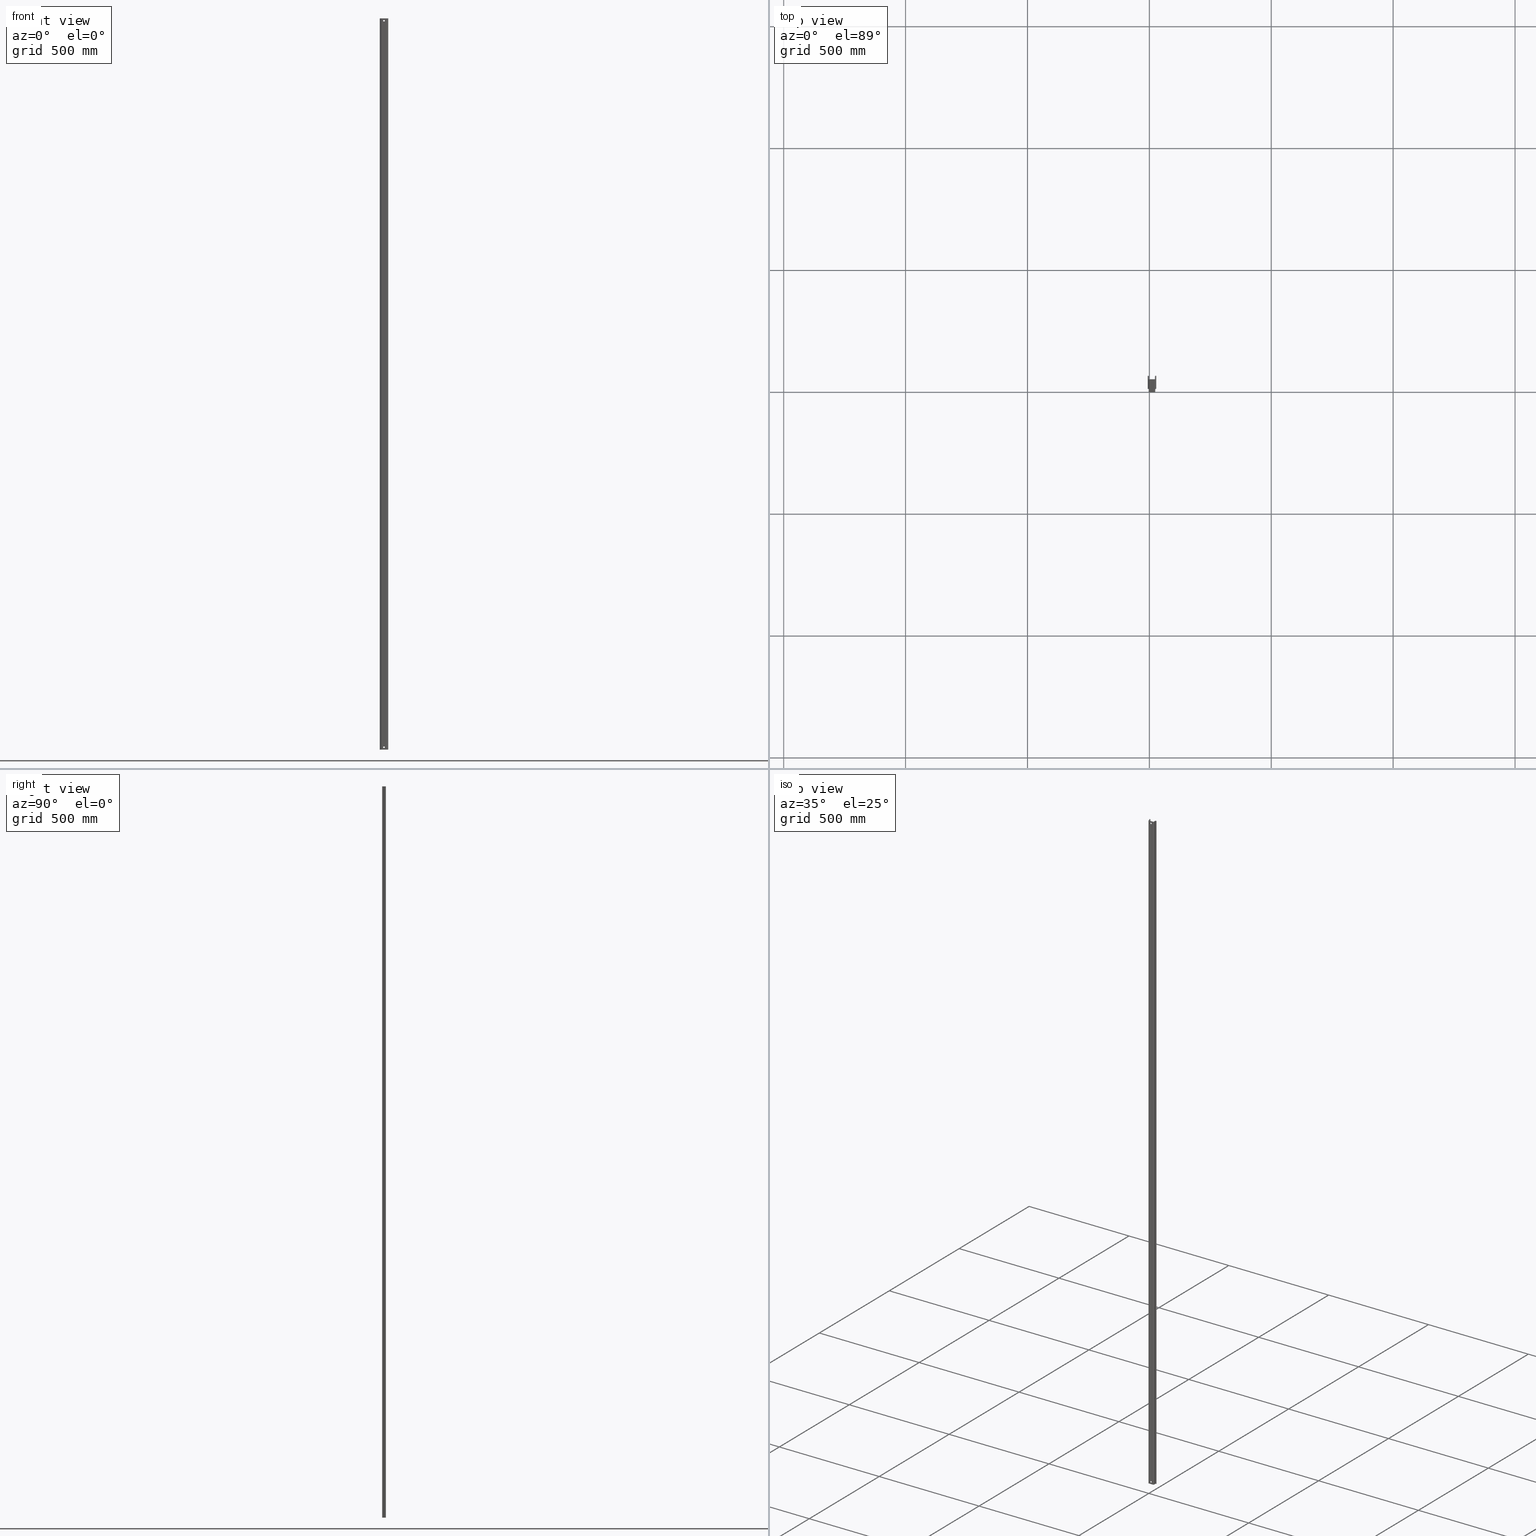
[diagram: canonical four-view strip — front | top / right | iso, engineering-drawing reading convention]
A machine part, canonical four-view strip (front | top / right | iso — engineering-drawing reading convention). The complete STEP part file that produces these views, byte-faithful:
ISO-10303-21;
HEADER;
FILE_DESCRIPTION (( 'STEP AP203' ),
    '1' );
FILE_NAME ('35x15 Galvaniz Kapl� D�z Montaj Raylar� - 3 m.STEP',
    '2019-01-04T05:44:15',
    ( '' ),
    ( '' ),
    'SwSTEP 2.0',
    'SolidWorks 2011',
    '' );
FILE_SCHEMA (( 'CONFIG_CONTROL_DESIGN' ));
ENDSEC;

DATA;
#1 = CARTESIAN_POINT ( 'NONE',  ( 10.80000000000001500, 1.500000000000001300, 6.750000000000008000 ) ) ;
#2 = CARTESIAN_POINT ( 'NONE',  ( -4.833974596215169200, 13.49999999999993600, 3000.000000000000000 ) ) ;
#3 = CARTESIAN_POINT ( 'NONE',  ( -3.899999999999969300, 14.99999999999993100, 3000.000000000000000 ) ) ;
#4 = ORIENTED_EDGE ( 'NONE', *, *, #906, .T. ) ;
#5 = CARTESIAN_POINT ( 'NONE',  ( 0.0000000000000000000, 0.0000000000000000000, 3000.000000000000000 ) ) ;
#6 = ORIENTED_EDGE ( 'NONE', *, *, #927, .F. ) ;
#7 = CARTESIAN_POINT ( 'NONE',  ( 10.80000000000001500, 0.0000000000000000000, 13.25000000000001100 ) ) ;
#8 = CARTESIAN_POINT ( 'NONE',  ( -6.699999999999986900, 13.99999999999993600, 3000.000000000000000 ) ) ;
#9 = CARTESIAN_POINT ( 'NONE',  ( -3.899999999999969300, 13.49999999999993600, 3000.000000000000000 ) ) ;
#10 = CARTESIAN_POINT ( 'NONE',  ( 22.80000000000003300, 12.30000000000021400, 3000.000000000000000 ) ) ;
#11 = CARTESIAN_POINT ( 'NONE',  ( 21.60000000000014700, 1.500000000000001300, 0.0000000000000000000 ) ) ;
#12 = CARTESIAN_POINT ( 'NONE',  ( 26.43397459621518300, 13.50000000000004600, 0.0000000000000000000 ) ) ;
#13 = ORIENTED_EDGE ( 'NONE', *, *, #976, .T. ) ;
#14 = CARTESIAN_POINT ( 'NONE',  ( 25.50000000000000400, 15.00000000000005500, 0.0000000000000000000 ) ) ;
#15 = CARTESIAN_POINT ( 'NONE',  ( 0.0000000000000000000, 1.500000000000001300, 0.0000000000000000000 ) ) ;
#16 = ORIENTED_EDGE ( 'NONE', *, *, #922, .F. ) ;
#17 = CARTESIAN_POINT ( 'NONE',  ( -3.899999999999969300, 14.99999999999993100, 0.0000000000000000000 ) ) ;
#18 = CARTESIAN_POINT ( 'NONE',  ( 28.30000000000002200, 15.00000000000005500, 3000.000000000000000 ) ) ;
#19 = CARTESIAN_POINT ( 'NONE',  ( 10.80000000000001500, 0.0000000000000000000, 2993.250000000000000 ) ) ;
#20 = CARTESIAN_POINT ( 'NONE',  ( -6.699999999999986900, 13.99999999999993600, 0.0000000000000000000 ) ) ;
#21 = CARTESIAN_POINT ( 'NONE',  ( -1.199999999999961500, 2.699999999999980200, 3000.000000000000000 ) ) ;
#22 = CARTESIAN_POINT ( 'NONE',  ( 10.80000000000001500, 1.500000000000001300, 2986.750000000000500 ) ) ;
#23 = CARTESIAN_POINT ( 'NONE',  ( 25.50000000000000400, 13.50000000000004600, 3000.000000000000000 ) ) ;
#24 = CARTESIAN_POINT ( 'NONE',  ( 10.80000000000001500, 1.500000000000001300, 13.25000000000001100 ) ) ;
#25 = ORIENTED_EDGE ( 'NONE', *, *, #940, .T. ) ;
#26 = ORIENTED_EDGE ( 'NONE', *, *, #952, .F. ) ;
#27 = CARTESIAN_POINT ( 'NONE',  ( 21.60000000000014700, 0.0000000000000000000, 0.0000000000000000000 ) ) ;
#28 = ORIENTED_EDGE ( 'NONE', *, *, #946, .F. ) ;
#29 = ORIENTED_EDGE ( 'NONE', *, *, #900, .T. ) ;
#30 = ORIENTED_EDGE ( 'NONE', *, *, #928, .T. ) ;
#31 = ORIENTED_EDGE ( 'NONE', *, *, #943, .T. ) ;
#32 = CARTESIAN_POINT ( 'NONE',  ( 0.0000000000000000000, 0.0000000000000000000, 0.0000000000000000000 ) ) ;
#33 = ORIENTED_EDGE ( 'NONE', *, *, #972, .F. ) ;
#34 = CARTESIAN_POINT ( 'NONE',  ( 22.80000000000003300, 2.700000000000056600, 3000.000000000000000 ) ) ;
#35 = CARTESIAN_POINT ( 'NONE',  ( 25.50000000000000400, 15.00000000000005500, 3000.000000000000000 ) ) ;
#36 = ORIENTED_EDGE ( 'NONE', *, *, #944, .T. ) ;
#37 = CARTESIAN_POINT ( 'NONE',  ( -4.833974596215169200, 13.49999999999993600, 0.0000000000000000000 ) ) ;
#38 = CARTESIAN_POINT ( 'NONE',  ( 21.60000000000014700, 1.500000000000001300, 3000.000000000000000 ) ) ;
#39 = CARTESIAN_POINT ( 'NONE',  ( 26.43397459621518300, 13.50000000000004600, 3000.000000000000000 ) ) ;
#40 = CARTESIAN_POINT ( 'NONE',  ( 0.0000000000000000000, 1.500000000000001300, 3000.000000000000000 ) ) ;
#41 = ORIENTED_EDGE ( 'NONE', *, *, #917, .T. ) ;
#42 = CARTESIAN_POINT ( 'NONE',  ( -1.199999999999961500, 12.30000000000013000, 3000.000000000000000 ) ) ;
#43 = CARTESIAN_POINT ( 'NONE',  ( 28.30000000000002200, 15.00000000000005500, 0.0000000000000000000 ) ) ;
#44 = CARTESIAN_POINT ( 'NONE',  ( 28.30000000000002200, 14.00000000000005300, 3000.000000000000000 ) ) ;
#45 = CARTESIAN_POINT ( 'NONE',  ( 24.30000000000003300, 2.700000000000056600, 3000.000000000000000 ) ) ;
#46 = CARTESIAN_POINT ( 'NONE',  ( 21.60000000000014700, 0.0000000000000000000, 3000.000000000000000 ) ) ;
#47 = CARTESIAN_POINT ( 'NONE',  ( -1.040834085586084300E-014, 2.699999999999980200, 0.0000000000000000000 ) ) ;
#48 = CYLINDRICAL_SURFACE ( 'NONE', #712, 2.699999999999983700 ) ;
#49 = FACE_OUTER_BOUND ( 'NONE', #211, .T. ) ;
#50 = DIRECTION ( 'NONE',  ( -0.0000000000000000000, 0.0000000000000000000, -1.000000000000000000 ) ) ;
#51 = CARTESIAN_POINT ( 'NONE',  ( -1.199999999999961500, 12.30000000000013000, 0.0000000000000000000 ) ) ;
#52 = CARTESIAN_POINT ( 'NONE',  ( -2.699999999999962900, 12.30000000000013000, 3000.000000000000000 ) ) ;
#53 = CARTESIAN_POINT ( 'NONE',  ( 24.30000000000003300, 2.700000000000056600, 0.0000000000000000000 ) ) ;
#54 = CARTESIAN_POINT ( 'NONE',  ( 25.50000000000000400, 12.30000000000006100, 3000.000000000000000 ) ) ;
#55 = CARTESIAN_POINT ( 'NONE',  ( -6.699999999999986900, -22.46146667334581400, 3000.000000000000000 ) ) ;
#56 = CYLINDRICAL_SURFACE ( 'NONE', #723, 1.199999999999975300 ) ;
#57 = DIRECTION ( 'NONE',  ( -0.0000000000000000000, -0.0000000000000000000, -1.000000000000000000 ) ) ;
#58 = CARTESIAN_POINT ( 'NONE',  ( -3.899999999999969300, 13.49999999999993600, 0.0000000000000000000 ) ) ;
#59 = CARTESIAN_POINT ( 'NONE',  ( -2.699999999999962900, 12.30000000000013000, 0.0000000000000000000 ) ) ;
#60 = PLANE ( 'NONE',  #729 ) ;
#61 = CARTESIAN_POINT ( 'NONE',  ( -2.699999999999962900, -22.46146667334581400, 3000.000000000000000 ) ) ;
#62 = DIRECTION ( 'NONE',  ( 1.000000000000000000, 0.0000000000000000000, 0.0000000000000000000 ) ) ;
#63 = FACE_OUTER_BOUND ( 'NONE', #198, .T. ) ;
#64 = CARTESIAN_POINT ( 'NONE',  ( 24.30000000000003300, 12.30000000000022800, 0.0000000000000000000 ) ) ;
#65 = CARTESIAN_POINT ( 'NONE',  ( 25.50000000000000400, 12.30000000000006100, 3000.000000000000000 ) ) ;
#66 = DIRECTION ( 'NONE',  ( -0.0000000000000000000, -0.0000000000000000000, -1.000000000000000000 ) ) ;
#67 = DIRECTION ( 'NONE',  ( -0.0000000000000000000, 0.0000000000000000000, 1.000000000000000000 ) ) ;
#68 = DIRECTION ( 'NONE',  ( 0.0000000000000000000, 1.000000000000000000, 0.0000000000000000000 ) ) ;
#69 = CARTESIAN_POINT ( 'NONE',  ( 22.80000000000003300, 2.700000000000056600, 0.0000000000000000000 ) ) ;
#70 = DIRECTION ( 'NONE',  ( 1.000000000000000000, 0.0000000000000000000, -0.0000000000000000000 ) ) ;
#71 = DIRECTION ( 'NONE',  ( -1.000000000000000000, 0.0000000000000000000, 0.0000000000000000000 ) ) ;
#72 = FACE_OUTER_BOUND ( 'NONE', #209, .T. ) ;
#73 = DIRECTION ( 'NONE',  ( -0.0000000000000000000, -0.0000000000000000000, -1.000000000000000000 ) ) ;
#74 = DIRECTION ( 'NONE',  ( -1.000000000000000000, 0.0000000000000000000, 0.0000000000000000000 ) ) ;
#75 = PLANE ( 'NONE',  #702 ) ;
#76 = CARTESIAN_POINT ( 'NONE',  ( 28.30000000000002200, 14.00000000000005300, 0.0000000000000000000 ) ) ;
#77 = FACE_OUTER_BOUND ( 'NONE', #210, .T. ) ;
#78 = CARTESIAN_POINT ( 'NONE',  ( 10.49461781091140900, 14.99999999999993100, 3000.000000000000000 ) ) ;
#79 = DIRECTION ( 'NONE',  ( -0.0000000000000000000, -0.0000000000000000000, -1.000000000000000000 ) ) ;
#80 = LINE ( 'NONE', #83, #728 ) ;
#81 = CARTESIAN_POINT ( 'NONE',  ( 10.80000000000001500, 0.0000000000000000000, 6.750000000000008000 ) ) ;
#82 = CARTESIAN_POINT ( 'NONE',  ( 24.30000000000003300, 12.30000000000022800, 3000.000000000000000 ) ) ;
#83 = CARTESIAN_POINT ( 'NONE',  ( -2.699999999999962900, 12.30000000000013000, 3000.000000000000000 ) ) ;
#84 = CARTESIAN_POINT ( 'NONE',  ( 22.80000000000003300, 12.30000000000021400, 0.0000000000000000000 ) ) ;
#85 = FACE_OUTER_BOUND ( 'NONE', #212, .T. ) ;
#86 = CARTESIAN_POINT ( 'NONE',  ( 25.50000000000000400, 12.30000000000006100, 3000.000000000000000 ) ) ;
#87 = DIRECTION ( 'NONE',  ( -0.0000000000000000000, 0.0000000000000000000, 1.000000000000000000 ) ) ;
#88 = DIRECTION ( 'NONE',  ( -0.0000000000000000000, 0.0000000000000000000, -1.000000000000000000 ) ) ;
#89 = LINE ( 'NONE', #90, #724 ) ;
#90 = CARTESIAN_POINT ( 'NONE',  ( 24.30000000000003300, 2.700000000000056600, 3000.000000000000000 ) ) ;
#91 = CARTESIAN_POINT ( 'NONE',  ( -1.199999999999961500, 2.699999999999980200, 0.0000000000000000000 ) ) ;
#92 = CARTESIAN_POINT ( 'NONE',  ( -6.699999999999986900, 14.99999999999993100, 3000.000000000000000 ) ) ;
#93 = CARTESIAN_POINT ( 'NONE',  ( -2.699999999999962900, 2.699999999999980200, 0.0000000000000000000 ) ) ;
#94 = CARTESIAN_POINT ( 'NONE',  ( -1.040834085586084300E-014, 2.699999999999980200, 3000.000000000000000 ) ) ;
#95 = PLANE ( 'NONE',  #701 ) ;
#96 = DIRECTION ( 'NONE',  ( 1.000000000000000000, 0.0000000000000000000, -0.0000000000000000000 ) ) ;
#97 = CARTESIAN_POINT ( 'NONE',  ( -6.699999999999986900, 14.99999999999993100, 0.0000000000000000000 ) ) ;
#98 = DIRECTION ( 'NONE',  ( 1.000000000000000000, 0.0000000000000000000, 0.0000000000000000000 ) ) ;
#99 = CARTESIAN_POINT ( 'NONE',  ( 21.60000000000014700, 0.0000000000000000000, 3000.000000000000000 ) ) ;
#100 = DIRECTION ( 'NONE',  ( -0.0000000000000000000, -0.0000000000000000000, -1.000000000000000000 ) ) ;
#101 = DIRECTION ( 'NONE',  ( -0.0000000000000000000, -0.0000000000000000000, -1.000000000000000000 ) ) ;
#102 = LINE ( 'NONE', #99, #711 ) ;
#103 = DIRECTION ( 'NONE',  ( -1.000000000000000000, 0.0000000000000000000, 0.0000000000000000000 ) ) ;
#104 = CYLINDRICAL_SURFACE ( 'NONE', #710, 3.250000000000001300 ) ;
#105 = DIRECTION ( 'NONE',  ( 0.0000000000000000000, 0.0000000000000000000, 1.000000000000000000 ) ) ;
#106 = DIRECTION ( 'NONE',  ( -1.000000000000000000, 0.0000000000000000000, 0.0000000000000000000 ) ) ;
#107 = FACE_OUTER_BOUND ( 'NONE', #224, .T. ) ;
#108 = LINE ( 'NONE', #111, #696 ) ;
#109 = DIRECTION ( 'NONE',  ( -0.0000000000000000000, -0.0000000000000000000, -1.000000000000000000 ) ) ;
#110 = CARTESIAN_POINT ( 'NONE',  ( 10.49461781091140900, 0.0000000000000000000, 3000.000000000000000 ) ) ;
#111 = CARTESIAN_POINT ( 'NONE',  ( 0.0000000000000000000, 0.0000000000000000000, 3000.000000000000000 ) ) ;
#112 = CARTESIAN_POINT ( 'NONE',  ( 25.50000000000000400, 13.50000000000004600, 3000.000000000000000 ) ) ;
#113 = LINE ( 'NONE', #110, #695 ) ;
#114 = LINE ( 'NONE', #112, #692 ) ;
#115 = CYLINDRICAL_SURFACE ( 'NONE', #709, 3.249999999999975100 ) ;
#116 = CARTESIAN_POINT ( 'NONE',  ( 10.80000000000001500, 0.0000000000000000000, 2990.000000000000000 ) ) ;
#117 = DIRECTION ( 'NONE',  ( -0.0000000000000000000, -0.0000000000000000000, -1.000000000000000000 ) ) ;
#118 = DIRECTION ( 'NONE',  ( 0.0000000000000000000, 0.0000000000000000000, 1.000000000000000000 ) ) ;
#119 = PLANE ( 'NONE',  #700 ) ;
#120 = FACE_OUTER_BOUND ( 'NONE', #215, .T. ) ;
#121 = DIRECTION ( 'NONE',  ( 1.000000000000000000, 0.0000000000000000000, 0.0000000000000000000 ) ) ;
#122 = CARTESIAN_POINT ( 'NONE',  ( 10.80000000000001500, -48.50000000000000000, 2990.000000000000000 ) ) ;
#123 = CARTESIAN_POINT ( 'NONE',  ( -3.899999999999969300, 12.29999999999996300, 3000.000000000000000 ) ) ;
#124 = DIRECTION ( 'NONE',  ( -0.0000000000000000000, 1.000000000000000000, -0.0000000000000000000 ) ) ;
#125 = LINE ( 'NONE', #128, #697 ) ;
#126 = DIRECTION ( 'NONE',  ( 0.0000000000000000000, 0.0000000000000000000, 1.000000000000000000 ) ) ;
#127 = CARTESIAN_POINT ( 'NONE',  ( 21.60000000000013600, 2.700000000000056600, 3000.000000000000000 ) ) ;
#128 = CARTESIAN_POINT ( 'NONE',  ( 24.30000000000003300, -22.46146667334581400, 0.0000000000000000000 ) ) ;
#129 = DIRECTION ( 'NONE',  ( 0.0000000000000000000, -1.000000000000000000, 0.0000000000000000000 ) ) ;
#130 = FACE_OUTER_BOUND ( 'NONE', #226, .T. ) ;
#131 = CARTESIAN_POINT ( 'NONE',  ( 18.45816349009776800, 7.258890409779502800, 3000.000000000000000 ) ) ;
#132 = DIRECTION ( 'NONE',  ( 0.2588190451024702200, 0.9659258262890818600, -0.0000000000000000000 ) ) ;
#133 = CARTESIAN_POINT ( 'NONE',  ( 10.80000000000001500, -48.50000000000000000, 10.00000000000000900 ) ) ;
#134 = DIRECTION ( 'NONE',  ( -0.0000000000000000000, -0.0000000000000000000, -1.000000000000000000 ) ) ;
#135 = DIRECTION ( 'NONE',  ( -0.9659258262890817500, 0.2588190451024701700, 0.0000000000000000000 ) ) ;
#136 = CYLINDRICAL_SURFACE ( 'NONE', #690, 1.199999999999991100 ) ;
#137 = FACE_OUTER_BOUND ( 'NONE', #199, .T. ) ;
#138 = DIRECTION ( 'NONE',  ( -0.0000000000000000000, 0.0000000000000000000, 1.000000000000000000 ) ) ;
#139 = PLANE ( 'NONE',  #698 ) ;
#140 = CARTESIAN_POINT ( 'NONE',  ( 10.80000000000001500, 0.0000000000000000000, 10.00000000000000900 ) ) ;
#141 = DIRECTION ( 'NONE',  ( 0.0000000000000000000, 1.000000000000000000, 0.0000000000000000000 ) ) ;
#142 = DIRECTION ( 'NONE',  ( 0.0000000000000000000, 1.000000000000000000, 0.0000000000000000000 ) ) ;
#143 = DIRECTION ( 'NONE',  ( 0.0000000000000000000, -0.0000000000000000000, 1.000000000000000000 ) ) ;
#144 = CYLINDRICAL_SURFACE ( 'NONE', #694, 1.199999999999975300 ) ;
#145 = FACE_OUTER_BOUND ( 'NONE', #197, .T. ) ;
#146 = DIRECTION ( 'NONE',  ( 0.0000000000000000000, 0.0000000000000000000, 1.000000000000000000 ) ) ;
#147 = DIRECTION ( 'NONE',  ( -0.0000000000000000000, 1.000000000000000000, -0.0000000000000000000 ) ) ;
#148 = DIRECTION ( 'NONE',  ( 1.000000000000000000, 0.0000000000000000000, 0.0000000000000000000 ) ) ;
#149 = DIRECTION ( 'NONE',  ( 0.0000000000000000000, 1.000000000000000000, 0.0000000000000000000 ) ) ;
#150 = FACE_OUTER_BOUND ( 'NONE', #208, .T. ) ;
#151 = FACE_OUTER_BOUND ( 'NONE', #225, .T. ) ;
#152 = CYLINDRICAL_SURFACE ( 'NONE', #705, 2.699999999999966400 ) ;
#153 = DIRECTION ( 'NONE',  ( 0.2588190451024724400, -0.9659258262890811900, 0.0000000000000000000 ) ) ;
#154 = DIRECTION ( 'NONE',  ( -0.0000000000000000000, 0.0000000000000000000, 1.000000000000000000 ) ) ;
#155 = CARTESIAN_POINT ( 'NONE',  ( 21.60000000000013600, 2.700000000000056600, 3000.000000000000000 ) ) ;
#156 = DIRECTION ( 'NONE',  ( 0.0000000000000000000, -0.0000000000000000000, 1.000000000000000000 ) ) ;
#157 = PLANE ( 'NONE',  #689 ) ;
#158 = DIRECTION ( 'NONE',  ( 1.000000000000000000, 0.0000000000000000000, 0.0000000000000000000 ) ) ;
#159 = DIRECTION ( 'NONE',  ( 0.9659258262890811900, 0.2588190451024724400, 0.0000000000000000000 ) ) ;
#160 = DIRECTION ( 'NONE',  ( -1.000000000000000000, 0.0000000000000000000, 0.0000000000000000000 ) ) ;
#161 = DIRECTION ( 'NONE',  ( 1.000000000000000000, 0.0000000000000000000, -0.0000000000000000000 ) ) ;
#162 = CARTESIAN_POINT ( 'NONE',  ( -3.899999999999969300, 12.29999999999996300, 0.0000000000000000000 ) ) ;
#163 = FACE_OUTER_BOUND ( 'NONE', #206, .T. ) ;
#164 = DIRECTION ( 'NONE',  ( -0.0000000000000000000, 0.0000000000000000000, 1.000000000000000000 ) ) ;
#165 = CARTESIAN_POINT ( 'NONE',  ( 10.49461781091140900, -22.46146667334581400, 3000.000000000000000 ) ) ;
#166 = FACE_OUTER_BOUND ( 'NONE', #229, .T. ) ;
#167 = DIRECTION ( 'NONE',  ( 1.000000000000000000, 0.0000000000000000000, 0.0000000000000000000 ) ) ;
#168 = PLANE ( 'NONE',  #688 ) ;
#169 = DIRECTION ( 'NONE',  ( 0.0000000000000000000, -1.000000000000000000, 0.0000000000000000000 ) ) ;
#170 = CARTESIAN_POINT ( 'NONE',  ( 25.50000000000000400, 12.30000000000006100, 0.0000000000000000000 ) ) ;
#171 = FACE_BOUND ( 'NONE', #227, .T. ) ;
#172 = FACE_OUTER_BOUND ( 'NONE', #201, .T. ) ;
#173 = PLANE ( 'NONE',  #681 ) ;
#174 = DIRECTION ( 'NONE',  ( -0.0000000000000000000, 0.0000000000000000000, -1.000000000000000000 ) ) ;
#175 = CARTESIAN_POINT ( 'NONE',  ( 24.30000000000003300, -22.46146667334581400, 3000.000000000000000 ) ) ;
#176 = FACE_BOUND ( 'NONE', #213, .T. ) ;
#177 = CARTESIAN_POINT ( 'NONE',  ( 10.49461781091140900, 1.500000000000001300, 3000.000000000000000 ) ) ;
#178 = DIRECTION ( 'NONE',  ( -0.0000000000000000000, 0.0000000000000000000, 1.000000000000000000 ) ) ;
#179 = LINE ( 'NONE', #175, #715 ) ;
#180 =( NAMED_UNIT ( * ) SI_UNIT ( $, .STERADIAN. ) SOLID_ANGLE_UNIT ( ) );
#181 = CARTESIAN_POINT ( 'NONE',  ( 24.30000000000003300, -22.46146667334581400, 3000.000000000000000 ) ) ;
#182 = DIRECTION ( 'NONE',  ( 1.000000000000000000, 0.0000000000000000000, 0.0000000000000000000 ) ) ;
#183 = CARTESIAN_POINT ( 'NONE',  ( 2.571985587199523900, 7.106199315235241600, 3000.000000000000000 ) ) ;
#184 = DIRECTION ( 'NONE',  ( -0.0000000000000000000, 0.0000000000000000000, 1.000000000000000000 ) ) ;
#185 = CARTESIAN_POINT ( 'NONE',  ( -1.040834085586084300E-014, 2.699999999999980200, 3000.000000000000000 ) ) ;
#186 = DIRECTION ( 'NONE',  ( 1.000000000000000000, 0.0000000000000000000, 0.0000000000000000000 ) ) ;
#187 = CARTESIAN_POINT ( 'NONE',  ( -3.899999999999969300, 12.29999999999996300, 3000.000000000000000 ) ) ;
#188 = DIRECTION ( 'NONE',  ( -0.0000000000000000000, 0.0000000000000000000, 1.000000000000000000 ) ) ;
#189 = DIRECTION ( 'NONE',  ( -0.0000000000000000000, -0.0000000000000000000, -1.000000000000000000 ) ) ;
#190 = LINE ( 'NONE', #191, #707 ) ;
#191 = CARTESIAN_POINT ( 'NONE',  ( -2.699999999999962900, 2.699999999999980200, 3000.000000000000000 ) ) ;
#192 = DIRECTION ( 'NONE',  ( -0.0000000000000000000, -0.0000000000000000000, -1.000000000000000000 ) ) ;
#193 = APPROVAL_ROLE ( '' ) ;
#194 = EDGE_LOOP ( 'NONE', ( #305, #313, #299, #349 ) ) ;
#195 = ORIENTED_EDGE ( 'NONE', *, *, #962, .T. ) ;
#196 = ORIENTED_EDGE ( 'NONE', *, *, #954, .F. ) ;
#197 = EDGE_LOOP ( 'NONE', ( #292, #303, #347, #304 ) ) ;
#198 = EDGE_LOOP ( 'NONE', ( #368, #415, #325, #381 ) ) ;
#199 = EDGE_LOOP ( 'NONE', ( #361, #396, #400, #393 ) ) ;
#200 = EDGE_LOOP ( 'NONE', ( #386, #404 ) ) ;
#201 = EDGE_LOOP ( 'NONE', ( #353, #408, #370, #365 ) ) ;
#202 = EDGE_LOOP ( 'NONE', ( #327, #382 ) ) ;
#203 = ORIENTED_EDGE ( 'NONE', *, *, #989, .T. ) ;
#204 = EDGE_LOOP ( 'NONE', ( #388, #354, #367, #371 ) ) ;
#205 = ORIENTED_EDGE ( 'NONE', *, *, #987, .F. ) ;
#206 = EDGE_LOOP ( 'NONE', ( #401, #36, #421, #422, #387, #407, #26, #419, #410, #423, #406, #409, #420, #30, #417, #29, #383, #380, #402, #28, #424, #416 ) ) ;
#207 = EDGE_LOOP ( 'NONE', ( #293, #300, #302, #341 ) ) ;
#208 = EDGE_LOOP ( 'NONE', ( #375, #411, #374, #356 ) ) ;
#209 = EDGE_LOOP ( 'NONE', ( #310, #294, #334, #323 ) ) ;
#210 = EDGE_LOOP ( 'NONE', ( #360, #326, #357, #355 ) ) ;
#211 = EDGE_LOOP ( 'NONE', ( #358, #399, #344, #364 ) ) ;
#212 = EDGE_LOOP ( 'NONE', ( #333, #413, #405, #394 ) ) ;
#213 = EDGE_LOOP ( 'NONE', ( #307, #295 ) ) ;
#214 = EDGE_LOOP ( 'NONE', ( #389, #414, #373, #337 ) ) ;
#215 = EDGE_LOOP ( 'NONE', ( #205, #260, #255, #220 ) ) ;
#216 = ORIENTED_EDGE ( 'NONE', *, *, #990, .T. ) ;
#217 = EDGE_LOOP ( 'NONE', ( #418, #25, #13, #31, #390, #4, #6, #391, #16, #378, #41, #33, #249, #273, #203, #281, #216, #254, #232, #195, #196, #252 ) ) ;
#218 = EDGE_LOOP ( 'NONE', ( #376, #392, #398, #330 ) ) ;
#219 = EDGE_LOOP ( 'NONE', ( #329, #315, #320, #317 ) ) ;
#220 = ORIENTED_EDGE ( 'NONE', *, *, #934, .T. ) ;
#221 = EDGE_LOOP ( 'NONE', ( #311, #335, #321, #322 ) ) ;
#222 = EDGE_LOOP ( 'NONE', ( #328, #312, #289, #319 ) ) ;
#223 = EDGE_LOOP ( 'NONE', ( #332, #385, #412, #397 ) ) ;
#224 = EDGE_LOOP ( 'NONE', ( #339, #291, #290, #342 ) ) ;
#225 = EDGE_LOOP ( 'NONE', ( #318, #314, #308, #343 ) ) ;
#226 = EDGE_LOOP ( 'NONE', ( #363, #372, #366, #338 ) ) ;
#227 = EDGE_LOOP ( 'NONE', ( #306, #324 ) ) ;
#228 = EDGE_LOOP ( 'NONE', ( #384, #362, #379, #369 ) ) ;
#229 = EDGE_LOOP ( 'NONE', ( #351, #352, #403, #331 ) ) ;
#230 = EDGE_LOOP ( 'NONE', ( #272, #251, #233, #270 ) ) ;
#231 = EDGE_LOOP ( 'NONE', ( #377, #350, #359, #395 ) ) ;
#232 = ORIENTED_EDGE ( 'NONE', *, *, #949, .T. ) ;
#233 = ORIENTED_EDGE ( 'NONE', *, *, #985, .T. ) ;
#234 = VERTEX_POINT ( 'NONE', #7 ) ;
#235 = VERTEX_POINT ( 'NONE', #39 ) ;
#236 = VERTEX_POINT ( 'NONE', #5 ) ;
#237 = VERTEX_POINT ( 'NONE', #340 ) ;
#238 = VERTEX_POINT ( 'NONE', #346 ) ;
#239 = VERTEX_POINT ( 'NONE', #348 ) ;
#240 = VERTEX_POINT ( 'NONE', #336 ) ;
#241 = VERTEX_POINT ( 'NONE', #9 ) ;
#242 = VERTEX_POINT ( 'NONE', #27 ) ;
#243 = VERTEX_POINT ( 'NONE', #19 ) ;
#244 = VERTEX_POINT ( 'NONE', #20 ) ;
#245 = VERTEX_POINT ( 'NONE', #32 ) ;
#246 = VERTEX_POINT ( 'NONE', #8 ) ;
#247 = VERTEX_POINT ( 'NONE', #15 ) ;
#248 = VERTEX_POINT ( 'NONE', #17 ) ;
#249 = ORIENTED_EDGE ( 'NONE', *, *, #970, .F. ) ;
#250 = VERTEX_POINT ( 'NONE', #18 ) ;
#251 = ORIENTED_EDGE ( 'NONE', *, *, #909, .F. ) ;
#252 = ORIENTED_EDGE ( 'NONE', *, *, #950, .F. ) ;
#253 = VERTEX_POINT ( 'NONE', #22 ) ;
#254 = ORIENTED_EDGE ( 'NONE', *, *, #966, .T. ) ;
#255 = ORIENTED_EDGE ( 'NONE', *, *, #942, .T. ) ;
#256 = VERTEX_POINT ( 'NONE', #11 ) ;
#257 = VERTEX_POINT ( 'NONE', #1 ) ;
#258 = VERTEX_POINT ( 'NONE', #24 ) ;
#259 = VERTEX_POINT ( 'NONE', #37 ) ;
#260 = ORIENTED_EDGE ( 'NONE', *, *, #902, .F. ) ;
#261 = VERTEX_POINT ( 'NONE', #14 ) ;
#262 = VERTEX_POINT ( 'NONE', #43 ) ;
#263 = VERTEX_POINT ( 'NONE', #34 ) ;
#264 = VERTEX_POINT ( 'NONE', #38 ) ;
#265 = VERTEX_POINT ( 'NONE', #40 ) ;
#266 = VERTEX_POINT ( 'NONE', #44 ) ;
#267 = VERTEX_POINT ( 'NONE', #21 ) ;
#268 = VERTEX_POINT ( 'NONE', #23 ) ;
#269 = VERTEX_POINT ( 'NONE', #35 ) ;
#270 = ORIENTED_EDGE ( 'NONE', *, *, #967, .T. ) ;
#271 = VERTEX_POINT ( 'NONE', #45 ) ;
#272 = ORIENTED_EDGE ( 'NONE', *, *, #984, .F. ) ;
#273 = ORIENTED_EDGE ( 'NONE', *, *, #960, .F. ) ;
#274 = VERTEX_POINT ( 'NONE', #12 ) ;
#275 = VERTEX_POINT ( 'NONE', #3 ) ;
#276 = VERTEX_POINT ( 'NONE', #42 ) ;
#277 = VERTEX_POINT ( 'NONE', #10 ) ;
#278 = VERTEX_POINT ( 'NONE', #53 ) ;
#279 = VERTEX_POINT ( 'NONE', #46 ) ;
#280 = VERTEX_POINT ( 'NONE', #51 ) ;
#281 = ORIENTED_EDGE ( 'NONE', *, *, #958, .F. ) ;
#282 = VERTEX_POINT ( 'NONE', #2 ) ;
#283 = VERTEX_POINT ( 'NONE', #97 ) ;
#284 = VERTEX_POINT ( 'NONE', #92 ) ;
#285 = VERTEX_POINT ( 'NONE', #84 ) ;
#286 = VERTEX_POINT ( 'NONE', #58 ) ;
#287 = VERTEX_POINT ( 'NONE', #59 ) ;
#288 = VERTEX_POINT ( 'NONE', #81 ) ;
#289 = ORIENTED_EDGE ( 'NONE', *, *, #980, .F. ) ;
#290 = ORIENTED_EDGE ( 'NONE', *, *, #986, .T. ) ;
#291 = ORIENTED_EDGE ( 'NONE', *, *, #984, .T. ) ;
#292 = ORIENTED_EDGE ( 'NONE', *, *, #962, .F. ) ;
#293 = ORIENTED_EDGE ( 'NONE', *, *, #954, .T. ) ;
#294 = ORIENTED_EDGE ( 'NONE', *, *, #975, .F. ) ;
#295 = ORIENTED_EDGE ( 'NONE', *, *, #986, .F. ) ;
#296 = VERTEX_POINT ( 'NONE', #82 ) ;
#297 = VERTEX_POINT ( 'NONE', #93 ) ;
#298 = VERTEX_POINT ( 'NONE', #52 ) ;
#299 = ORIENTED_EDGE ( 'NONE', *, *, #963, .T. ) ;
#300 = ORIENTED_EDGE ( 'NONE', *, *, #983, .F. ) ;
#301 = VERTEX_POINT ( 'NONE', #64 ) ;
#302 = ORIENTED_EDGE ( 'NONE', *, *, #969, .F. ) ;
#303 = ORIENTED_EDGE ( 'NONE', *, *, #971, .F. ) ;
#304 = ORIENTED_EDGE ( 'NONE', *, *, #983, .T. ) ;
#305 = ORIENTED_EDGE ( 'NONE', *, *, #945, .F. ) ;
#306 = ORIENTED_EDGE ( 'NONE', *, *, #934, .F. ) ;
#307 = ORIENTED_EDGE ( 'NONE', *, *, #967, .F. ) ;
#308 = ORIENTED_EDGE ( 'NONE', *, *, #941, .T. ) ;
#309 = VERTEX_POINT ( 'NONE', #91 ) ;
#310 = ORIENTED_EDGE ( 'NONE', *, *, #950, .T. ) ;
#311 = ORIENTED_EDGE ( 'NONE', *, *, #990, .F. ) ;
#312 = ORIENTED_EDGE ( 'NONE', *, *, #978, .F. ) ;
#313 = ORIENTED_EDGE ( 'NONE', *, *, #987, .T. ) ;
#314 = ORIENTED_EDGE ( 'NONE', *, *, #951, .F. ) ;
#315 = ORIENTED_EDGE ( 'NONE', *, *, #981, .F. ) ;
#316 = VERTEX_POINT ( 'NONE', #76 ) ;
#317 = ORIENTED_EDGE ( 'NONE', *, *, #951, .T. ) ;
#318 = ORIENTED_EDGE ( 'NONE', *, *, #949, .F. ) ;
#319 = ORIENTED_EDGE ( 'NONE', *, *, #979, .T. ) ;
#320 = ORIENTED_EDGE ( 'NONE', *, *, #982, .T. ) ;
#321 = ORIENTED_EDGE ( 'NONE', *, *, #952, .T. ) ;
#322 = ORIENTED_EDGE ( 'NONE', *, *, #981, .T. ) ;
#323 = ORIENTED_EDGE ( 'NONE', *, *, #978, .T. ) ;
#324 = ORIENTED_EDGE ( 'NONE', *, *, #963, .F. ) ;
#325 = ORIENTED_EDGE ( 'NONE', *, *, #961, .F. ) ;
#326 = ORIENTED_EDGE ( 'NONE', *, *, #964, .F. ) ;
#327 = ORIENTED_EDGE ( 'NONE', *, *, #909, .T. ) ;
#328 = ORIENTED_EDGE ( 'NONE', *, *, #953, .T. ) ;
#329 = ORIENTED_EDGE ( 'NONE', *, *, #966, .F. ) ;
#330 = ORIENTED_EDGE ( 'NONE', *, *, #939, .T. ) ;
#331 = ORIENTED_EDGE ( 'NONE', *, *, #891, .T. ) ;
#332 = ORIENTED_EDGE ( 'NONE', *, *, #972, .T. ) ;
#333 = ORIENTED_EDGE ( 'NONE', *, *, #913, .F. ) ;
#334 = ORIENTED_EDGE ( 'NONE', *, *, #944, .F. ) ;
#335 = ORIENTED_EDGE ( 'NONE', *, *, #939, .F. ) ;
#336 = CARTESIAN_POINT ( 'NONE',  ( 10.80000000000001500, 0.0000000000000000000, 2986.750000000000500 ) ) ;
#337 = ORIENTED_EDGE ( 'NONE', *, *, #899, .T. ) ;
#338 = ORIENTED_EDGE ( 'NONE', *, *, #977, .T. ) ;
#339 = ORIENTED_EDGE ( 'NONE', *, *, #957, .F. ) ;
#340 = CARTESIAN_POINT ( 'NONE',  ( 25.50000000000000400, 13.50000000000004600, 0.0000000000000000000 ) ) ;
#341 = ORIENTED_EDGE ( 'NONE', *, *, #975, .T. ) ;
#342 = ORIENTED_EDGE ( 'NONE', *, *, #985, .F. ) ;
#343 = ORIENTED_EDGE ( 'NONE', *, *, #971, .T. ) ;
#344 = ORIENTED_EDGE ( 'NONE', *, *, #928, .F. ) ;
#345 = VERTEX_POINT ( 'NONE', #69 ) ;
#346 = CARTESIAN_POINT ( 'NONE',  ( -2.699999999999962900, 2.699999999999980200, 3000.000000000000000 ) ) ;
#347 = ORIENTED_EDGE ( 'NONE', *, *, #965, .T. ) ;
#348 = CARTESIAN_POINT ( 'NONE',  ( 10.80000000000001500, 1.500000000000001300, 2993.250000000000000 ) ) ;
#349 = ORIENTED_EDGE ( 'NONE', *, *, #942, .F. ) ;
#350 = ORIENTED_EDGE ( 'NONE', *, *, #910, .F. ) ;
#351 = ORIENTED_EDGE ( 'NONE', *, *, #906, .F. ) ;
#352 = ORIENTED_EDGE ( 'NONE', *, *, #933, .F. ) ;
#353 = ORIENTED_EDGE ( 'NONE', *, *, #976, .F. ) ;
#354 = ORIENTED_EDGE ( 'NONE', *, *, #891, .F. ) ;
#355 = ORIENTED_EDGE ( 'NONE', *, *, #956, .T. ) ;
#356 = ORIENTED_EDGE ( 'NONE', *, *, #921, .T. ) ;
#357 = ORIENTED_EDGE ( 'NONE', *, *, #955, .T. ) ;
#358 = ORIENTED_EDGE ( 'NONE', *, *, #923, .T. ) ;
#359 = ORIENTED_EDGE ( 'NONE', *, *, #900, .F. ) ;
#360 = ORIENTED_EDGE ( 'NONE', *, *, #989, .F. ) ;
#361 = ORIENTED_EDGE ( 'NONE', *, *, #917, .F. ) ;
#362 = ORIENTED_EDGE ( 'NONE', *, *, #979, .F. ) ;
#363 = ORIENTED_EDGE ( 'NONE', *, *, #970, .T. ) ;
#364 = ORIENTED_EDGE ( 'NONE', *, *, #894, .T. ) ;
#365 = ORIENTED_EDGE ( 'NONE', *, *, #974, .T. ) ;
#366 = ORIENTED_EDGE ( 'NONE', *, *, #935, .F. ) ;
#367 = ORIENTED_EDGE ( 'NONE', *, *, #911, .F. ) ;
#368 = ORIENTED_EDGE ( 'NONE', *, *, #960, .T. ) ;
#369 = ORIENTED_EDGE ( 'NONE', *, *, #968, .T. ) ;
#370 = ORIENTED_EDGE ( 'NONE', *, *, #959, .T. ) ;
#371 = ORIENTED_EDGE ( 'NONE', *, *, #910, .T. ) ;
#372 = ORIENTED_EDGE ( 'NONE', *, *, #936, .F. ) ;
#373 = ORIENTED_EDGE ( 'NONE', *, *, #946, .T. ) ;
#374 = ORIENTED_EDGE ( 'NONE', *, *, #889, .F. ) ;
#375 = ORIENTED_EDGE ( 'NONE', *, *, #922, .T. ) ;
#376 = ORIENTED_EDGE ( 'NONE', *, *, #958, .T. ) ;
#377 = ORIENTED_EDGE ( 'NONE', *, *, #932, .T. ) ;
#378 = ORIENTED_EDGE ( 'NONE', *, *, #923, .F. ) ;
#379 = ORIENTED_EDGE ( 'NONE', *, *, #991, .T. ) ;
#380 = ORIENTED_EDGE ( 'NONE', *, *, #919, .F. ) ;
#381 = ORIENTED_EDGE ( 'NONE', *, *, #964, .T. ) ;
#382 = ORIENTED_EDGE ( 'NONE', *, *, #957, .T. ) ;
#383 = ORIENTED_EDGE ( 'NONE', *, *, #911, .T. ) ;
#384 = ORIENTED_EDGE ( 'NONE', *, *, #940, .F. ) ;
#385 = ORIENTED_EDGE ( 'NONE', *, *, #973, .F. ) ;
#386 = ORIENTED_EDGE ( 'NONE', *, *, #902, .T. ) ;
#387 = ORIENTED_EDGE ( 'NONE', *, *, #941, .F. ) ;
#388 = ORIENTED_EDGE ( 'NONE', *, *, #927, .T. ) ;
#389 = ORIENTED_EDGE ( 'NONE', *, *, #943, .F. ) ;
#390 = ORIENTED_EDGE ( 'NONE', *, *, #913, .T. ) ;
#391 = ORIENTED_EDGE ( 'NONE', *, *, #932, .F. ) ;
#392 = ORIENTED_EDGE ( 'NONE', *, *, #956, .F. ) ;
#393 = ORIENTED_EDGE ( 'NONE', *, *, #973, .T. ) ;
#394 = ORIENTED_EDGE ( 'NONE', *, *, #933, .T. ) ;
#395 = ORIENTED_EDGE ( 'NONE', *, *, #905, .T. ) ;
#396 = ORIENTED_EDGE ( 'NONE', *, *, #894, .F. ) ;
#397 = ORIENTED_EDGE ( 'NONE', *, *, #936, .T. ) ;
#398 = ORIENTED_EDGE ( 'NONE', *, *, #988, .F. ) ;
#399 = ORIENTED_EDGE ( 'NONE', *, *, #921, .F. ) ;
#400 = ORIENTED_EDGE ( 'NONE', *, *, #914, .T. ) ;
#401 = ORIENTED_EDGE ( 'NONE', *, *, #980, .T. ) ;
#402 = ORIENTED_EDGE ( 'NONE', *, *, #895, .F. ) ;
#403 = ORIENTED_EDGE ( 'NONE', *, *, #919, .T. ) ;
#404 = ORIENTED_EDGE ( 'NONE', *, *, #945, .T. ) ;
#405 = ORIENTED_EDGE ( 'NONE', *, *, #895, .T. ) ;
#406 = ORIENTED_EDGE ( 'NONE', *, *, #935, .T. ) ;
#407 = ORIENTED_EDGE ( 'NONE', *, *, #982, .F. ) ;
#408 = ORIENTED_EDGE ( 'NONE', *, *, #968, .F. ) ;
#409 = ORIENTED_EDGE ( 'NONE', *, *, #930, .T. ) ;
#410 = ORIENTED_EDGE ( 'NONE', *, *, #955, .F. ) ;
#411 = ORIENTED_EDGE ( 'NONE', *, *, #905, .F. ) ;
#412 = ORIENTED_EDGE ( 'NONE', *, *, #930, .F. ) ;
#413 = ORIENTED_EDGE ( 'NONE', *, *, #899, .F. ) ;
#414 = ORIENTED_EDGE ( 'NONE', *, *, #974, .F. ) ;
#415 = ORIENTED_EDGE ( 'NONE', *, *, #977, .F. ) ;
#416 = ORIENTED_EDGE ( 'NONE', *, *, #991, .F. ) ;
#417 = ORIENTED_EDGE ( 'NONE', *, *, #889, .T. ) ;
#418 = ORIENTED_EDGE ( 'NONE', *, *, #953, .F. ) ;
#419 = ORIENTED_EDGE ( 'NONE', *, *, #988, .T. ) ;
#420 = ORIENTED_EDGE ( 'NONE', *, *, #914, .F. ) ;
#421 = ORIENTED_EDGE ( 'NONE', *, *, #969, .T. ) ;
#422 = ORIENTED_EDGE ( 'NONE', *, *, #965, .F. ) ;
#423 = ORIENTED_EDGE ( 'NONE', *, *, #961, .T. ) ;
#424 = ORIENTED_EDGE ( 'NONE', *, *, #959, .F. ) ;
#425 = DIRECTION ( 'NONE',  ( 0.0000000000000000000, 0.0000000000000000000, 1.000000000000000000 ) ) ;
#426 = PERSON_AND_ORGANIZATION ( #678, #761 ) ;
#427 = APPROVAL_STATUS ( 'not_yet_approved' ) ;
#428 = CARTESIAN_POINT ( 'NONE',  ( 0.0000000000000000000, 0.0000000000000000000, 0.0000000000000000000 ) ) ;
#429 = MECHANICAL_CONTEXT ( 'NONE', #485, 'mechanical' ) ;
#430 = APPLICATION_PROTOCOL_DEFINITION ( 'international standard', 'config_control_design', 1994, #485 ) ;
#431 = DIRECTION ( 'NONE',  ( 1.000000000000000000, 0.0000000000000000000, 0.0000000000000000000 ) ) ;
#432 = VECTOR ( 'NONE', #526, 1000.000000000000000 ) ;
#433 = AXIS2_PLACEMENT_3D ( 'NONE', #537, #552, #570 ) ;
#434 = VECTOR ( 'NONE', #562, 1000.000000000000000 ) ;
#435 = AXIS2_PLACEMENT_3D ( 'NONE', #582, #598, #607 ) ;
#436 = VECTOR ( 'NONE', #581, 1000.000000000000000 ) ;
#437 = AXIS2_PLACEMENT_3D ( 'NONE', #569, #596, #590 ) ;
#438 = VECTOR ( 'NONE', #603, 1000.000000000000000 ) ;
#439 = AXIS2_PLACEMENT_3D ( 'NONE', #587, #601, #584 ) ;
#440 = VECTOR ( 'NONE', #534, 1000.000000000000000 ) ;
#441 = VECTOR ( 'NONE', #585, 1000.000000000000000 ) ;
#442 = VECTOR ( 'NONE', #600, 1000.000000000000000 ) ;
#443 = VECTOR ( 'NONE', #640, 1000.000000000000000 ) ;
#444 = VECTOR ( 'NONE', #589, 1000.000000000000000 ) ;
#445 = AXIS2_PLACEMENT_3D ( 'NONE', #583, #593, #605 ) ;
#446 = VECTOR ( 'NONE', #555, 1000.000000000000000 ) ;
#447 = CIRCLE ( 'NONE', #439, 2.699999999999983700 ) ;
#448 = VECTOR ( 'NONE', #568, 1000.000000000000000 ) ;
#449 = AXIS2_PLACEMENT_3D ( 'NONE', #509, #512, #513 ) ;
#450 = VECTOR ( 'NONE', #532, 1000.000000000000000 ) ;
#451 = CIRCLE ( 'NONE', #435, 3.249999999999975100 ) ;
#452 = AXIS2_PLACEMENT_3D ( 'NONE', #510, #511, #518 ) ;
#453 = VECTOR ( 'NONE', #558, 1000.000000000000000 ) ;
#454 = VECTOR ( 'NONE', #522, 1000.000000000000000 ) ;
#455 = CIRCLE ( 'NONE', #463, 3.249999999999975100 ) ;
#456 = VECTOR ( 'NONE', #547, 1000.000000000000000 ) ;
#457 = CIRCLE ( 'NONE', #433, 2.699999999999983700 ) ;
#458 = VECTOR ( 'NONE', #539, 1000.000000000000000 ) ;
#459 = VECTOR ( 'NONE', #563, 1000.000000000000000 ) ;
#460 = VECTOR ( 'NONE', #648, 1000.000000000000000 ) ;
#461 = AXIS2_PLACEMENT_3D ( 'NONE', #546, #540, #545 ) ;
#462 = AXIS2_PLACEMENT_3D ( 'NONE', #527, #549, #542 ) ;
#463 = AXIS2_PLACEMENT_3D ( 'NONE', #523, #538, #544 ) ;
#464 = CIRCLE ( 'NONE', #465, 3.250000000000001300 ) ;
#465 = AXIS2_PLACEMENT_3D ( 'NONE', #577, #612, #611 ) ;
#466 = AXIS2_PLACEMENT_3D ( 'NONE', #646, #634, #654 ) ;
#467 = CIRCLE ( 'NONE', #478, 1.199999999999975300 ) ;
#468 = CIRCLE ( 'NONE', #475, 3.249999999999975100 ) ;
#469 = VECTOR ( 'NONE', #647, 1000.000000000000000 ) ;
#470 = AXIS2_PLACEMENT_3D ( 'NONE', #631, #637, #636 ) ;
#471 = VECTOR ( 'NONE', #597, 1000.000000000000000 ) ;
#472 = AXIS2_PLACEMENT_3D ( 'NONE', #616, #639, #644 ) ;
#473 = CIRCLE ( 'NONE', #484, 3.250000000000001300 ) ;
#474 = VECTOR ( 'NONE', #575, 1000.000000000000000 ) ;
#475 = AXIS2_PLACEMENT_3D ( 'NONE', #627, #618, #657 ) ;
#476 = CIRCLE ( 'NONE', #466, 2.699999999999987300 ) ;
#477 = VECTOR ( 'NONE', #645, 1000.000000000000000 ) ;
#478 = AXIS2_PLACEMENT_3D ( 'NONE', #620, #630, #621 ) ;
#479 = CIRCLE ( 'NONE', #472, 1.199999999999965100 ) ;
#480 = CIRCLE ( 'NONE', #470, 1.199999999999975300 ) ;
#481 = VECTOR ( 'NONE', #652, 1000.000000000000000 ) ;
#482 = VECTOR ( 'NONE', #632, 1000.000000000000100 ) ;
#483 = VECTOR ( 'NONE', #643, 1000.000000000000000 ) ;
#484 = AXIS2_PLACEMENT_3D ( 'NONE', #628, #624, #641 ) ;
#485 = APPLICATION_CONTEXT ( 'configuration controlled 3d designs of mechanical parts and assemblies' ) ;
#486 = APPLICATION_CONTEXT ( 'configuration controlled 3d designs of mechanical parts and assemblies' ) ;
#487 = LOCAL_TIME ( 8, 44, 15.00000000000000000, #808 ) ;
#488 = APPROVAL_PERSON_ORGANIZATION ( #801, #674, #782 ) ;
#489 = LOCAL_TIME ( 8, 44, 15.00000000000000000, #802 ) ;
#490 = CC_DESIGN_APPROVAL ( #674, ( #734 ) ) ;
#491 = CC_DESIGN_SECURITY_CLASSIFICATION ( #734, ( #747 ) ) ;
#492 = DIRECTION ( 'NONE',  ( 0.0000000000000000000, -0.0000000000000000000, -1.000000000000000000 ) ) ;
#493 = DIRECTION ( 'NONE',  ( 0.0000000000000000000, -0.0000000000000000000, 1.000000000000000000 ) ) ;
#494 = DIRECTION ( 'NONE',  ( -0.0000000000000000000, 1.000000000000000000, -0.0000000000000000000 ) ) ;
#495 = LINE ( 'NONE', #501, #720 ) ;
#496 = CARTESIAN_POINT ( 'NONE',  ( 10.80000000000001500, -48.50000000000000000, 10.00000000000000900 ) ) ;
#497 = FACE_OUTER_BOUND ( 'NONE', #223, .T. ) ;
#498 = FACE_OUTER_BOUND ( 'NONE', #228, .T. ) ;
#499 = DIRECTION ( 'NONE',  ( 0.0000000000000000000, -1.000000000000000000, 0.0000000000000000000 ) ) ;
#500 = FACE_OUTER_BOUND ( 'NONE', #230, .T. ) ;
#501 = CARTESIAN_POINT ( 'NONE',  ( -2.699999999999962900, -22.46146667334581400, 3000.000000000000000 ) ) ;
#502 = DIRECTION ( 'NONE',  ( 0.0000000000000000000, 1.000000000000000000, 0.0000000000000000000 ) ) ;
#503 = CARTESIAN_POINT ( 'NONE',  ( 10.49461781091140900, 13.49999999999993600, 3000.000000000000000 ) ) ;
#504 = DIRECTION ( 'NONE',  ( 0.0000000000000000000, 0.0000000000000000000, 1.000000000000000000 ) ) ;
#505 = CYLINDRICAL_SURFACE ( 'NONE', #718, 3.250000000000001300 ) ;
#506 = DIRECTION ( 'NONE',  ( 0.0000000000000000000, -1.000000000000000000, 0.0000000000000000000 ) ) ;
#507 = DIRECTION ( 'NONE',  ( 1.000000000000000000, 0.0000000000000000000, 0.0000000000000000000 ) ) ;
#508 = LINE ( 'NONE', #556, #456 ) ;
#509 = CARTESIAN_POINT ( 'NONE',  ( 10.49461781091140900, -22.46146667334581400, 0.0000000000000000000 ) ) ;
#510 = CARTESIAN_POINT ( 'NONE',  ( 28.30000000000002200, -22.46146667334581400, 3000.000000000000000 ) ) ;
#511 = DIRECTION ( 'NONE',  ( 1.000000000000000000, 0.0000000000000000000, -0.0000000000000000000 ) ) ;
#512 = DIRECTION ( 'NONE',  ( -0.0000000000000000000, 0.0000000000000000000, 1.000000000000000000 ) ) ;
#513 = DIRECTION ( 'NONE',  ( 1.000000000000000000, 0.0000000000000000000, 0.0000000000000000000 ) ) ;
#514 = FACE_OUTER_BOUND ( 'NONE', #217, .T. ) ;
#515 = CARTESIAN_POINT ( 'NONE',  ( 21.60000000000013600, 2.700000000000056600, 0.0000000000000000000 ) ) ;
#516 = PLANE ( 'NONE',  #452 ) ;
#517 = DIRECTION ( 'NONE',  ( -0.0000000000000000000, 0.0000000000000000000, 1.000000000000000000 ) ) ;
#518 = DIRECTION ( 'NONE',  ( -0.0000000000000000000, 0.0000000000000000000, -1.000000000000000000 ) ) ;
#519 = PLANE ( 'NONE',  #449 ) ;
#520 = LINE ( 'NONE', #521, #454 ) ;
#521 = CARTESIAN_POINT ( 'NONE',  ( 10.49461781091140900, 13.49999999999993600, 3000.000000000000000 ) ) ;
#522 = DIRECTION ( 'NONE',  ( 1.000000000000000000, 0.0000000000000000000, 0.0000000000000000000 ) ) ;
#523 = CARTESIAN_POINT ( 'NONE',  ( 10.80000000000001500, 1.500000000000001300, 2990.000000000000000 ) ) ;
#524 = PLANE ( 'NONE',  #462 ) ;
#525 = LINE ( 'NONE', #548, #432 ) ;
#526 = DIRECTION ( 'NONE',  ( 0.9659258262890818600, -0.2588190451024701700, 0.0000000000000000000 ) ) ;
#527 = CARTESIAN_POINT ( 'NONE',  ( 10.49461781091140900, 0.0000000000000000000, 3000.000000000000000 ) ) ;
#528 = LINE ( 'NONE', #529, #446 ) ;
#529 = CARTESIAN_POINT ( 'NONE',  ( 10.80000000000001500, -48.50000000000000000, 2993.250000000000000 ) ) ;
#530 = LINE ( 'NONE', #531, #450 ) ;
#531 = CARTESIAN_POINT ( 'NONE',  ( 28.30000000000002200, -22.46146667334581400, 0.0000000000000000000 ) ) ;
#532 = DIRECTION ( 'NONE',  ( 0.0000000000000000000, -1.000000000000000000, 0.0000000000000000000 ) ) ;
#533 = FACE_OUTER_BOUND ( 'NONE', #231, .T. ) ;
#534 = DIRECTION ( 'NONE',  ( -0.0000000000000000000, -0.0000000000000000000, -1.000000000000000000 ) ) ;
#535 = PLANE ( 'NONE',  #461 ) ;
#536 = CARTESIAN_POINT ( 'NONE',  ( 10.49461781091140900, 13.50000000000004600, 0.0000000000000000000 ) ) ;
#537 = CARTESIAN_POINT ( 'NONE',  ( 25.50000000000000400, 12.30000000000006100, 3000.000000000000000 ) ) ;
#538 = DIRECTION ( 'NONE',  ( 0.0000000000000000000, 1.000000000000000000, 0.0000000000000000000 ) ) ;
#539 = DIRECTION ( 'NONE',  ( 1.000000000000000000, 0.0000000000000000000, 0.0000000000000000000 ) ) ;
#540 = DIRECTION ( 'NONE',  ( 1.000000000000000000, 0.0000000000000000000, -0.0000000000000000000 ) ) ;
#541 = CARTESIAN_POINT ( 'NONE',  ( 10.49461781091140900, 13.50000000000004600, 3000.000000000000000 ) ) ;
#542 = DIRECTION ( 'NONE',  ( 0.0000000000000000000, -0.0000000000000000000, 1.000000000000000000 ) ) ;
#543 = CARTESIAN_POINT ( 'NONE',  ( -4.833974596215169200, 13.49999999999993600, 3000.000000000000000 ) ) ;
#544 = DIRECTION ( 'NONE',  ( 0.0000000000000000000, 0.0000000000000000000, 1.000000000000000000 ) ) ;
#545 = DIRECTION ( 'NONE',  ( -0.0000000000000000000, 0.0000000000000000000, -1.000000000000000000 ) ) ;
#546 = CARTESIAN_POINT ( 'NONE',  ( 22.80000000000003300, -22.46146667334581400, 3000.000000000000000 ) ) ;
#547 = DIRECTION ( 'NONE',  ( -0.0000000000000000000, -0.0000000000000000000, -1.000000000000000000 ) ) ;
#548 = CARTESIAN_POINT ( 'NONE',  ( 18.45816349009776800, 7.258890409779502800, 3000.000000000000000 ) ) ;
#549 = DIRECTION ( 'NONE',  ( 0.0000000000000000000, 1.000000000000000000, 0.0000000000000000000 ) ) ;
#550 = LINE ( 'NONE', #536, #459 ) ;
#551 = CARTESIAN_POINT ( 'NONE',  ( 10.49461781091140900, 1.500000000000001300, 3000.000000000000000 ) ) ;
#552 = DIRECTION ( 'NONE',  ( -0.0000000000000000000, 0.0000000000000000000, 1.000000000000000000 ) ) ;
#553 = LINE ( 'NONE', #551, #434 ) ;
#554 = FACE_BOUND ( 'NONE', #200, .T. ) ;
#555 = DIRECTION ( 'NONE',  ( -0.0000000000000000000, 1.000000000000000000, -0.0000000000000000000 ) ) ;
#556 = CARTESIAN_POINT ( 'NONE',  ( 24.30000000000003300, 12.30000000000022800, 3000.000000000000000 ) ) ;
#557 = LINE ( 'NONE', #543, #453 ) ;
#558 = DIRECTION ( 'NONE',  ( -0.0000000000000000000, -0.0000000000000000000, -1.000000000000000000 ) ) ;
#559 = FACE_BOUND ( 'NONE', #202, .T. ) ;
#560 = LINE ( 'NONE', #561, #440 ) ;
#561 = CARTESIAN_POINT ( 'NONE',  ( -1.199999999999961500, 12.30000000000013000, 3000.000000000000000 ) ) ;
#562 = DIRECTION ( 'NONE',  ( 1.000000000000000000, 0.0000000000000000000, 0.0000000000000000000 ) ) ;
#563 = DIRECTION ( 'NONE',  ( -1.000000000000000000, 0.0000000000000000000, 0.0000000000000000000 ) ) ;
#564 = CARTESIAN_POINT ( 'NONE',  ( 10.49461781091140900, 0.0000000000000000000, 0.0000000000000000000 ) ) ;
#565 = LINE ( 'NONE', #541, #448 ) ;
#566 = FACE_OUTER_BOUND ( 'NONE', #207, .T. ) ;
#567 = LINE ( 'NONE', #564, #458 ) ;
#568 = DIRECTION ( 'NONE',  ( -1.000000000000000000, 0.0000000000000000000, 0.0000000000000000000 ) ) ;
#569 = CARTESIAN_POINT ( 'NONE',  ( 21.60000000000013600, 2.700000000000056600, 3000.000000000000000 ) ) ;
#570 = DIRECTION ( 'NONE',  ( 1.000000000000000000, 0.0000000000000000000, 0.0000000000000000000 ) ) ;
#571 = FACE_OUTER_BOUND ( 'NONE', #204, .T. ) ;
#572 = LINE ( 'NONE', #578, #438 ) ;
#573 = LINE ( 'NONE', #602, #442 ) ;
#574 = CARTESIAN_POINT ( 'NONE',  ( -3.899999999999969300, 14.99999999999993100, 3000.000000000000000 ) ) ;
#575 = DIRECTION ( 'NONE',  ( 1.000000000000000000, 0.0000000000000000000, 0.0000000000000000000 ) ) ;
#576 = CYLINDRICAL_SURFACE ( 'NONE', #445, 2.699999999999987300 ) ;
#577 = CARTESIAN_POINT ( 'NONE',  ( 10.80000000000001500, 0.0000000000000000000, 10.00000000000000900 ) ) ;
#578 = CARTESIAN_POINT ( 'NONE',  ( 10.49461781091140900, 1.500000000000001300, 0.0000000000000000000 ) ) ;
#579 = CARTESIAN_POINT ( 'NONE',  ( 22.80000000000003300, -22.46146667334581400, 0.0000000000000000000 ) ) ;
#580 = CARTESIAN_POINT ( 'NONE',  ( 10.49461781091140900, 15.00000000000005500, 0.0000000000000000000 ) ) ;
#581 = DIRECTION ( 'NONE',  ( -1.000000000000000000, 0.0000000000000000000, 0.0000000000000000000 ) ) ;
#582 = CARTESIAN_POINT ( 'NONE',  ( 10.80000000000001500, 0.0000000000000000000, 2990.000000000000000 ) ) ;
#583 = CARTESIAN_POINT ( 'NONE',  ( -3.899999999999969300, 12.29999999999996300, 3000.000000000000000 ) ) ;
#584 = DIRECTION ( 'NONE',  ( 1.000000000000000000, 0.0000000000000000000, 0.0000000000000000000 ) ) ;
#585 = DIRECTION ( 'NONE',  ( -0.0000000000000000000, -0.0000000000000000000, -1.000000000000000000 ) ) ;
#586 = CARTESIAN_POINT ( 'NONE',  ( 0.0000000000000000000, 1.500000000000001300, 3000.000000000000000 ) ) ;
#587 = CARTESIAN_POINT ( 'NONE',  ( 25.50000000000000400, 12.30000000000006100, 0.0000000000000000000 ) ) ;
#588 = LINE ( 'NONE', #622, #481 ) ;
#589 = DIRECTION ( 'NONE',  ( 0.0000000000000000000, -1.000000000000000000, 0.0000000000000000000 ) ) ;
#590 = DIRECTION ( 'NONE',  ( -1.000000000000000000, 0.0000000000000000000, 0.0000000000000000000 ) ) ;
#591 = CYLINDRICAL_SURFACE ( 'NONE', #437, 2.699999999999976600 ) ;
#592 = LINE ( 'NONE', #579, #444 ) ;
#593 = DIRECTION ( 'NONE',  ( -0.0000000000000000000, -0.0000000000000000000, -1.000000000000000000 ) ) ;
#594 = FACE_OUTER_BOUND ( 'NONE', #218, .T. ) ;
#595 = LINE ( 'NONE', #604, #474 ) ;
#596 = DIRECTION ( 'NONE',  ( -0.0000000000000000000, -0.0000000000000000000, -1.000000000000000000 ) ) ;
#597 = DIRECTION ( 'NONE',  ( -0.0000000000000000000, -0.0000000000000000000, -1.000000000000000000 ) ) ;
#598 = DIRECTION ( 'NONE',  ( 0.0000000000000000000, 1.000000000000000000, 0.0000000000000000000 ) ) ;
#599 = LINE ( 'NONE', #586, #441 ) ;
#600 = DIRECTION ( 'NONE',  ( 0.0000000000000000000, -1.000000000000000000, 0.0000000000000000000 ) ) ;
#601 = DIRECTION ( 'NONE',  ( -0.0000000000000000000, 0.0000000000000000000, 1.000000000000000000 ) ) ;
#602 = CARTESIAN_POINT ( 'NONE',  ( -1.199999999999961500, -22.46146667334581400, 3000.000000000000000 ) ) ;
#603 = DIRECTION ( 'NONE',  ( 1.000000000000000000, 0.0000000000000000000, 0.0000000000000000000 ) ) ;
#604 = CARTESIAN_POINT ( 'NONE',  ( 10.49461781091140900, 14.99999999999993100, 3000.000000000000000 ) ) ;
#605 = DIRECTION ( 'NONE',  ( -1.000000000000000000, 0.0000000000000000000, 0.0000000000000000000 ) ) ;
#606 = LINE ( 'NONE', #580, #436 ) ;
#607 = DIRECTION ( 'NONE',  ( 0.0000000000000000000, 0.0000000000000000000, 1.000000000000000000 ) ) ;
#608 = LINE ( 'NONE', #574, #471 ) ;
#609 = LINE ( 'NONE', #610, #482 ) ;
#610 = CARTESIAN_POINT ( 'NONE',  ( 2.571985587199523900, 7.106199315235241600, 3000.000000000000000 ) ) ;
#611 = DIRECTION ( 'NONE',  ( 0.0000000000000000000, 0.0000000000000000000, 1.000000000000000000 ) ) ;
#612 = DIRECTION ( 'NONE',  ( 0.0000000000000000000, 1.000000000000000000, 0.0000000000000000000 ) ) ;
#613 = LINE ( 'NONE', #629, #483 ) ;
#614 = CARTESIAN_POINT ( 'NONE',  ( 10.49461781091140900, 13.49999999999993600, 0.0000000000000000000 ) ) ;
#615 = DIRECTION ( 'NONE',  ( 1.000000000000000000, 0.0000000000000000000, 0.0000000000000000000 ) ) ;
#616 = CARTESIAN_POINT ( 'NONE',  ( -1.040834085586084300E-014, 2.699999999999980200, 0.0000000000000000000 ) ) ;
#617 = LINE ( 'NONE', #885, #737 ) ;
#618 = DIRECTION ( 'NONE',  ( 0.0000000000000000000, 1.000000000000000000, 0.0000000000000000000 ) ) ;
#619 = LINE ( 'NONE', #653, #460 ) ;
#620 = CARTESIAN_POINT ( 'NONE',  ( 21.60000000000013600, 2.700000000000056600, 0.0000000000000000000 ) ) ;
#621 = DIRECTION ( 'NONE',  ( 1.000000000000000000, 0.0000000000000000000, 0.0000000000000000000 ) ) ;
#622 = CARTESIAN_POINT ( 'NONE',  ( -6.699999999999986900, -22.46146667334581400, 0.0000000000000000000 ) ) ;
#623 = CARTESIAN_POINT ( 'NONE',  ( 28.30000000000002200, 14.00000000000005300, 3000.000000000000000 ) ) ;
#624 = DIRECTION ( 'NONE',  ( -0.0000000000000000000, 1.000000000000000000, -0.0000000000000000000 ) ) ;
#625 = DIRECTION ( 'NONE',  ( -0.0000000000000000000, -0.0000000000000000000, -1.000000000000000000 ) ) ;
#626 = CARTESIAN_POINT ( 'NONE',  ( 22.80000000000003300, -22.46146667334581400, 3000.000000000000000 ) ) ;
#627 = CARTESIAN_POINT ( 'NONE',  ( 10.80000000000001500, 1.500000000000001300, 2990.000000000000000 ) ) ;
#628 = CARTESIAN_POINT ( 'NONE',  ( 10.80000000000001500, 1.500000000000001300, 10.00000000000000900 ) ) ;
#629 = CARTESIAN_POINT ( 'NONE',  ( -6.699999999999986900, -22.46146667334581400, 3000.000000000000000 ) ) ;
#630 = DIRECTION ( 'NONE',  ( -0.0000000000000000000, 0.0000000000000000000, 1.000000000000000000 ) ) ;
#631 = CARTESIAN_POINT ( 'NONE',  ( 21.60000000000013600, 2.700000000000056600, 3000.000000000000000 ) ) ;
#632 = DIRECTION ( 'NONE',  ( -0.9659258262890811900, -0.2588190451024724400, 0.0000000000000000000 ) ) ;
#633 = LINE ( 'NONE', #635, #477 ) ;
#634 = DIRECTION ( 'NONE',  ( -0.0000000000000000000, 0.0000000000000000000, 1.000000000000000000 ) ) ;
#635 = CARTESIAN_POINT ( 'NONE',  ( -6.699999999999986900, 14.99999999999993100, 3000.000000000000000 ) ) ;
#636 = DIRECTION ( 'NONE',  ( 1.000000000000000000, 0.0000000000000000000, 0.0000000000000000000 ) ) ;
#637 = DIRECTION ( 'NONE',  ( -0.0000000000000000000, 0.0000000000000000000, 1.000000000000000000 ) ) ;
#638 = LINE ( 'NONE', #623, #443 ) ;
#639 = DIRECTION ( 'NONE',  ( -0.0000000000000000000, 0.0000000000000000000, 1.000000000000000000 ) ) ;
#640 = DIRECTION ( 'NONE',  ( -0.0000000000000000000, -0.0000000000000000000, -1.000000000000000000 ) ) ;
#641 = DIRECTION ( 'NONE',  ( 0.0000000000000000000, 0.0000000000000000000, -1.000000000000000000 ) ) ;
#642 = LINE ( 'NONE', #626, #469 ) ;
#643 = DIRECTION ( 'NONE',  ( 0.0000000000000000000, -1.000000000000000000, 0.0000000000000000000 ) ) ;
#644 = DIRECTION ( 'NONE',  ( 1.000000000000000000, 0.0000000000000000000, 0.0000000000000000000 ) ) ;
#645 = DIRECTION ( 'NONE',  ( -0.0000000000000000000, -0.0000000000000000000, -1.000000000000000000 ) ) ;
#646 = CARTESIAN_POINT ( 'NONE',  ( -3.899999999999969300, 12.29999999999996300, 0.0000000000000000000 ) ) ;
#647 = DIRECTION ( 'NONE',  ( 0.0000000000000000000, -1.000000000000000000, 0.0000000000000000000 ) ) ;
#648 = DIRECTION ( 'NONE',  ( 0.9659258262890818600, -0.2588190451024701700, 0.0000000000000000000 ) ) ;
#649 = LINE ( 'NONE', #614, #738 ) ;
#650 = PERSON_AND_ORGANIZATION_ROLE ( 'design_owner' ) ;
#651 = LINE ( 'NONE', #655, #739 ) ;
#652 = DIRECTION ( 'NONE',  ( 0.0000000000000000000, -1.000000000000000000, 0.0000000000000000000 ) ) ;
#653 = CARTESIAN_POINT ( 'NONE',  ( 18.45816349009776800, 7.258890409779502800, 0.0000000000000000000 ) ) ;
#654 = DIRECTION ( 'NONE',  ( 1.000000000000000000, 0.0000000000000000000, 0.0000000000000000000 ) ) ;
#655 = CARTESIAN_POINT ( 'NONE',  ( 21.60000000000014700, 1.500000000000001300, 3000.000000000000000 ) ) ;
#656 = APPLICATION_PROTOCOL_DEFINITION ( 'international standard', 'config_control_design', 1994, #486 ) ;
#657 = DIRECTION ( 'NONE',  ( 0.0000000000000000000, 0.0000000000000000000, 1.000000000000000000 ) ) ;
#658 = FACE_OUTER_BOUND ( 'NONE', #214, .T. ) ;
#659 = PLANE ( 'NONE',  #722 ) ;
#660 = DIRECTION ( 'NONE',  ( 1.000000000000000000, 0.0000000000000000000, 0.0000000000000000000 ) ) ;
#661 = PERSON_AND_ORGANIZATION ( #678, #761 ) ;
#662 = DIRECTION ( 'NONE',  ( 0.0000000000000000000, -1.000000000000000000, 0.0000000000000000000 ) ) ;
#663 = PLANE ( 'NONE',  #685 ) ;
#664 = CARTESIAN_POINT ( 'NONE',  ( 10.49461781091140900, 13.50000000000004600, 3000.000000000000000 ) ) ;
#665 = LINE ( 'NONE', #666, #719 ) ;
#666 = CARTESIAN_POINT ( 'NONE',  ( -2.699999999999962900, -22.46146667334581400, 0.0000000000000000000 ) ) ;
#667 = PRODUCT ( '35x15 Galvaniz Kapl� D�z Montaj Raylar� - 3 m', '35x15 Galvaniz Kapl� D�z Montaj Raylar� - 3 m', '', ( #429 ) ) ;
#668 = PRODUCT_RELATED_PRODUCT_CATEGORY ( 'detail', '', ( #667 ) ) ;
#669 = CC_DESIGN_DATE_AND_TIME_ASSIGNMENT ( #792, #786, ( #734 ) ) ;
#670 = APPROVAL ( #790, 'BEL�RT�LMEM��' ) ;
#671 = CC_DESIGN_PERSON_AND_ORGANIZATION_ASSIGNMENT ( #799, #803, ( #747 ) ) ;
#672 = CC_DESIGN_PERSON_AND_ORGANIZATION_ASSIGNMENT ( #793, #776, ( #747 ) ) ;
#673 = CC_DESIGN_PERSON_AND_ORGANIZATION_ASSIGNMENT ( #787, #800, ( #734 ) ) ;
#674 = APPROVAL ( #780, 'BEL�RT�LMEM��' ) ;
#675 = APPROVAL ( #427, 'BEL�RT�LMEM��' ) ;
#676 = CC_DESIGN_PERSON_AND_ORGANIZATION_ASSIGNMENT ( #796, #789, ( #897 ) ) ;
#677 = CC_DESIGN_DATE_AND_TIME_ASSIGNMENT ( #788, #783, ( #897 ) ) ;
#678 = PERSON ( 'BEL�RT�LMEM��', 'BEL�RT�LMEM��', 'BEL�RT�LMEM��', ('BEL�RT�LMEM��'), ('BEL�RT�LMEM��'), ('BEL�RT�LMEM��') ) ;
#679 = ADVANCED_BREP_SHAPE_REPRESENTATION ( '35x15 Galvaniz Kapl� D�z Montaj Raylar� - 3 m', ( #771, #743 ), #767 ) ;
#680 = AXIS2_PLACEMENT_3D ( 'NONE', #155, #188, #182 ) ;
#681 = AXIS2_PLACEMENT_3D ( 'NONE', #177, #149, #156 ) ;
#682 = CIRCLE ( 'NONE', #680, 2.699999999999976600 ) ;
#683 = CIRCLE ( 'NONE', #716, 1.199999999999991100 ) ;
#684 = AXIS2_PLACEMENT_3D ( 'NONE', #140, #142, #146 ) ;
#685 = AXIS2_PLACEMENT_3D ( 'NONE', #503, #502, #493 ) ;
#686 = CIRCLE ( 'NONE', #704, 1.199999999999991100 ) ;
#687 = AXIS2_PLACEMENT_3D ( 'NONE', #515, #517, #507 ) ;
#688 = AXIS2_PLACEMENT_3D ( 'NONE', #181, #161, #174 ) ;
#689 = AXIS2_PLACEMENT_3D ( 'NONE', #165, #164, #167 ) ;
#690 = AXIS2_PLACEMENT_3D ( 'NONE', #123, #109, #103 ) ;
#691 = CIRCLE ( 'NONE', #706, 1.199999999999975300 ) ;
#692 = VECTOR ( 'NONE', #117, 1000.000000000000000 ) ;
#693 = AXIS2_PLACEMENT_3D ( 'NONE', #116, #141, #118 ) ;
#694 = AXIS2_PLACEMENT_3D ( 'NONE', #127, #134, #106 ) ;
#695 = VECTOR ( 'NONE', #121, 1000.000000000000000 ) ;
#696 = VECTOR ( 'NONE', #101, 1000.000000000000000 ) ;
#697 = VECTOR ( 'NONE', #129, 1000.000000000000000 ) ;
#698 = AXIS2_PLACEMENT_3D ( 'NONE', #183, #153, #159 ) ;
#699 = CIRCLE ( 'NONE', #717, 2.699999999999966400 ) ;
#700 = AXIS2_PLACEMENT_3D ( 'NONE', #131, #132, #135 ) ;
#701 = AXIS2_PLACEMENT_3D ( 'NONE', #55, #96, #50 ) ;
#702 = AXIS2_PLACEMENT_3D ( 'NONE', #78, #68, #143 ) ;
#703 = AXIS2_PLACEMENT_3D ( 'NONE', #170, #184, #158 ) ;
#704 = AXIS2_PLACEMENT_3D ( 'NONE', #162, #154, #148 ) ;
#705 = AXIS2_PLACEMENT_3D ( 'NONE', #185, #189, #160 ) ;
#706 = AXIS2_PLACEMENT_3D ( 'NONE', #65, #67, #98 ) ;
#707 = VECTOR ( 'NONE', #192, 1000.000000000000000 ) ;
#708 = CIRCLE ( 'NONE', #684, 3.250000000000001300 ) ;
#709 = AXIS2_PLACEMENT_3D ( 'NONE', #122, #147, #126 ) ;
#710 = AXIS2_PLACEMENT_3D ( 'NONE', #133, #124, #105 ) ;
#711 = VECTOR ( 'NONE', #100, 1000.000000000000000 ) ;
#712 = AXIS2_PLACEMENT_3D ( 'NONE', #54, #79, #71 ) ;
#713 = CIRCLE ( 'NONE', #693, 3.249999999999975100 ) ;
#714 = CIRCLE ( 'NONE', #703, 1.199999999999975300 ) ;
#715 = VECTOR ( 'NONE', #169, 1000.000000000000000 ) ;
#716 = AXIS2_PLACEMENT_3D ( 'NONE', #187, #178, #186 ) ;
#717 = AXIS2_PLACEMENT_3D ( 'NONE', #47, #138, #660 ) ;
#718 = AXIS2_PLACEMENT_3D ( 'NONE', #496, #494, #504 ) ;
#719 = VECTOR ( 'NONE', #662, 1000.000000000000000 ) ;
#720 = VECTOR ( 'NONE', #506, 1000.000000000000000 ) ;
#721 = CIRCLE ( 'NONE', #687, 2.699999999999976600 ) ;
#722 = AXIS2_PLACEMENT_3D ( 'NONE', #664, #499, #492 ) ;
#723 = AXIS2_PLACEMENT_3D ( 'NONE', #86, #73, #74 ) ;
#724 = VECTOR ( 'NONE', #66, 1000.000000000000000 ) ;
#725 = CLOSED_SHELL ( 'NONE', ( #904, #992, #994, #890, #937, #907, #916, #995, #993, #948, #898, #892, #908, #925, #901, #888, #915, #938, #947, #920, #893, #924, #912, #929, #918, #931, #903, #926 ) ) ;
#726 = CIRCLE ( 'NONE', #727, 2.699999999999966400 ) ;
#727 = AXIS2_PLACEMENT_3D ( 'NONE', #94, #87, #62 ) ;
#728 = VECTOR ( 'NONE', #57, 1000.000000000000000 ) ;
#729 = AXIS2_PLACEMENT_3D ( 'NONE', #61, #70, #88 ) ;
#730 = VECTOR ( 'NONE', #812, 1000.000000000000000 ) ;
#731 = VECTOR ( 'NONE', #825, 1000.000000000000100 ) ;
#732 = VECTOR ( 'NONE', #826, 1000.000000000000000 ) ;
#733 = VECTOR ( 'NONE', #820, 1000.000000000000000 ) ;
#734 = SECURITY_CLASSIFICATION ( '', '', #779 ) ;
#735 = VECTOR ( 'NONE', #827, 1000.000000000000000 ) ;
#736 = VECTOR ( 'NONE', #818, 1000.000000000000000 ) ;
#737 = VECTOR ( 'NONE', #883, 1000.000000000000000 ) ;
#738 = VECTOR ( 'NONE', #615, 1000.000000000000000 ) ;
#739 = VECTOR ( 'NONE', #625, 1000.000000000000000 ) ;
#740 = CC_DESIGN_APPROVAL ( #670, ( #747 ) ) ;
#741 = VECTOR ( 'NONE', #821, 1000.000000000000000 ) ;
#742 = AXIS2_PLACEMENT_3D ( 'NONE', #854, #835, #851 ) ;
#743 = AXIS2_PLACEMENT_3D ( 'NONE', #428, #425, #431 ) ;
#744 = AXIS2_PLACEMENT_3D ( 'NONE', #864, #863, #869 ) ;
#745 = VECTOR ( 'NONE', #848, 1000.000000000000000 ) ;
#746 = LOCAL_TIME ( 8, 44, 15.00000000000000000, #784 ) ;
#747 = PRODUCT_DEFINITION_FORMATION_WITH_SPECIFIED_SOURCE ( '     Herhangi', '', #667, .NOT_KNOWN. ) ;
#748 = APPROVAL_PERSON_ORGANIZATION ( #426, #675, #193 ) ;
#749 = APPROVAL_PERSON_ORGANIZATION ( #785, #670, #795 ) ;
#750 = VECTOR ( 'NONE', #868, 1000.000000000000000 ) ;
#751 = CC_DESIGN_APPROVAL ( #675, ( #897 ) ) ;
#752 = VECTOR ( 'NONE', #865, 1000.000000000000000 ) ;
#753 = CIRCLE ( 'NONE', #742, 3.250000000000001300 ) ;
#754 = VECTOR ( 'NONE', #847, 1000.000000000000000 ) ;
#755 = AXIS2_PLACEMENT_3D ( 'NONE', #850, #831, #856 ) ;
#756 = CIRCLE ( 'NONE', #755, 2.699999999999987300 ) ;
#757 = AXIS2_PLACEMENT_3D ( 'NONE', #841, #870, #844 ) ;
#758 = AXIS2_PLACEMENT_3D ( 'NONE', #849, #846, #859 ) ;
#759 = VECTOR ( 'NONE', #860, 1000.000000000000000 ) ;
#760 = VECTOR ( 'NONE', #867, 1000.000000000000000 ) ;
#761 = ORGANIZATION ( 'BEL�RT�LMEM��', 'BEL�RT�LMEM��', '' ) ;
#762 = AXIS2_PLACEMENT_3D ( 'NONE', #876, #880, #881 ) ;
#763 = VECTOR ( 'NONE', #855, 1000.000000000000000 ) ;
#764 = LOCAL_TIME ( 8, 44, 15.00000000000000000, #778 ) ;
#765 = CIRCLE ( 'NONE', #744, 1.199999999999965100 ) ;
#766 = AXIS2_PLACEMENT_3D ( 'NONE', #873, #874, #875 ) ;
#767 =( GEOMETRIC_REPRESENTATION_CONTEXT ( 3 ) GLOBAL_UNCERTAINTY_ASSIGNED_CONTEXT ( ( #772 ) ) GLOBAL_UNIT_ASSIGNED_CONTEXT ( ( #878, #882, #180 ) ) REPRESENTATION_CONTEXT ( 'NONE', 'WORKASPACE' ) );
#768 = VECTOR ( 'NONE', #837, 1000.000000000000000 ) ;
#769 = LOCAL_TIME ( 8, 44, 15.00000000000000000, #774 ) ;
#770 = DESIGN_CONTEXT ( 'detailed design', #486, 'design' ) ;
#771 = MANIFOLD_SOLID_BREP ( 'Kes-Ekstr�zyon1', #725 ) ;
#772 = UNCERTAINTY_MEASURE_WITH_UNIT (LENGTH_MEASURE( 1.000000000000000100E-005 ), #878, 'distance_accuracy_value', 'NONE');
#773 = PRODUCT_DEFINITION_SHAPE ( 'NONE', 'NONE',  #897 ) ;
#774 = COORDINATED_UNIVERSAL_TIME_OFFSET ( 3, 0, .AHEAD. ) ;
#775 = DATE_AND_TIME ( #791, #764 ) ;
#776 = PERSON_AND_ORGANIZATION_ROLE ( 'design_supplier' ) ;
#777 = CALENDAR_DATE ( 2019, 4, 1 ) ;
#778 = COORDINATED_UNIVERSAL_TIME_OFFSET ( 3, 0, .AHEAD. ) ;
#779 = SECURITY_CLASSIFICATION_LEVEL ( 'unclassified' ) ;
#780 = APPROVAL_STATUS ( 'not_yet_approved' ) ;
#781 = APPROVAL_DATE_TIME ( #807, #675 ) ;
#782 = APPROVAL_ROLE ( '' ) ;
#783 = DATE_TIME_ROLE ( 'creation_date' ) ;
#784 = COORDINATED_UNIVERSAL_TIME_OFFSET ( 3, 0, .AHEAD. ) ;
#785 = PERSON_AND_ORGANIZATION ( #678, #761 ) ;
#786 = DATE_TIME_ROLE ( 'classification_date' ) ;
#787 = PERSON_AND_ORGANIZATION ( #678, #761 ) ;
#788 = DATE_AND_TIME ( #797, #769 ) ;
#789 = PERSON_AND_ORGANIZATION_ROLE ( 'creator' ) ;
#790 = APPROVAL_STATUS ( 'not_yet_approved' ) ;
#791 = CALENDAR_DATE ( 2019, 4, 1 ) ;
#792 = DATE_AND_TIME ( #804, #487 ) ;
#793 = PERSON_AND_ORGANIZATION ( #678, #761 ) ;
#794 = CALENDAR_DATE ( 2019, 4, 1 ) ;
#795 = APPROVAL_ROLE ( '' ) ;
#796 = PERSON_AND_ORGANIZATION ( #678, #761 ) ;
#797 = CALENDAR_DATE ( 2019, 4, 1 ) ;
#798 = APPROVAL_DATE_TIME ( #775, #670 ) ;
#799 = PERSON_AND_ORGANIZATION ( #678, #761 ) ;
#800 = PERSON_AND_ORGANIZATION_ROLE ( 'classification_officer' ) ;
#801 = PERSON_AND_ORGANIZATION ( #678, #761 ) ;
#802 = COORDINATED_UNIVERSAL_TIME_OFFSET ( 3, 0, .AHEAD. ) ;
#803 = PERSON_AND_ORGANIZATION_ROLE ( 'creator' ) ;
#804 = CALENDAR_DATE ( 2019, 4, 1 ) ;
#805 = APPROVAL_DATE_TIME ( #809, #674 ) ;
#806 = SHAPE_DEFINITION_REPRESENTATION ( #773, #679 ) ;
#807 = DATE_AND_TIME ( #777, #746 ) ;
#808 = COORDINATED_UNIVERSAL_TIME_OFFSET ( 3, 0, .AHEAD. ) ;
#809 = DATE_AND_TIME ( #794, #489 ) ;
#810 = LINE ( 'NONE', #815, #732 ) ;
#811 = LINE ( 'NONE', #829, #735 ) ;
#812 = DIRECTION ( 'NONE',  ( -0.0000000000000000000, -0.0000000000000000000, -1.000000000000000000 ) ) ;
#813 = LINE ( 'NONE', #823, #741 ) ;
#814 = CARTESIAN_POINT ( 'NONE',  ( 2.571985587199523900, 7.106199315235241600, 0.0000000000000000000 ) ) ;
#815 = CARTESIAN_POINT ( 'NONE',  ( 25.50000000000000400, 15.00000000000005500, 3000.000000000000000 ) ) ;
#816 = LINE ( 'NONE', #822, #730 ) ;
#817 = LINE ( 'NONE', #830, #736 ) ;
#818 = DIRECTION ( 'NONE',  ( -1.000000000000000000, 0.0000000000000000000, 0.0000000000000000000 ) ) ;
#819 = LINE ( 'NONE', #861, #763 ) ;
#820 = DIRECTION ( 'NONE',  ( -0.0000000000000000000, -0.0000000000000000000, -1.000000000000000000 ) ) ;
#821 = DIRECTION ( 'NONE',  ( -0.0000000000000000000, -0.0000000000000000000, -1.000000000000000000 ) ) ;
#822 = CARTESIAN_POINT ( 'NONE',  ( -6.699999999999986900, 13.99999999999993600, 3000.000000000000000 ) ) ;
#823 = CARTESIAN_POINT ( 'NONE',  ( 22.80000000000003300, 12.30000000000021400, 3000.000000000000000 ) ) ;
#824 = CARTESIAN_POINT ( 'NONE',  ( 26.43397459621518300, 13.50000000000004600, 3000.000000000000000 ) ) ;
#825 = DIRECTION ( 'NONE',  ( -0.9659258262890811900, -0.2588190451024724400, 0.0000000000000000000 ) ) ;
#826 = DIRECTION ( 'NONE',  ( -0.0000000000000000000, -0.0000000000000000000, -1.000000000000000000 ) ) ;
#827 = DIRECTION ( 'NONE',  ( -0.0000000000000000000, -0.0000000000000000000, -1.000000000000000000 ) ) ;
#828 = LINE ( 'NONE', #814, #731 ) ;
#829 = CARTESIAN_POINT ( 'NONE',  ( 28.30000000000002200, 15.00000000000005500, 3000.000000000000000 ) ) ;
#830 = CARTESIAN_POINT ( 'NONE',  ( 10.49461781091140900, 15.00000000000005500, 3000.000000000000000 ) ) ;
#831 = DIRECTION ( 'NONE',  ( -0.0000000000000000000, 0.0000000000000000000, 1.000000000000000000 ) ) ;
#832 = CARTESIAN_POINT ( 'NONE',  ( 28.30000000000002200, -22.46146667334581400, 3000.000000000000000 ) ) ;
#833 = CARTESIAN_POINT ( 'NONE',  ( 10.80000000000001500, -48.50000000000000000, 13.25000000000001100 ) ) ;
#834 = LINE ( 'NONE', #857, #768 ) ;
#835 = DIRECTION ( 'NONE',  ( -0.0000000000000000000, 1.000000000000000000, -0.0000000000000000000 ) ) ;
#836 = CARTESIAN_POINT ( 'NONE',  ( 10.80000000000001500, -48.50000000000000000, 6.750000000000008000 ) ) ;
#837 = DIRECTION ( 'NONE',  ( -0.0000000000000000000, 1.000000000000000000, -0.0000000000000000000 ) ) ;
#838 = CARTESIAN_POINT ( 'NONE',  ( -1.199999999999961500, -22.46146667334581400, 0.0000000000000000000 ) ) ;
#839 = FACE_OUTER_BOUND ( 'NONE', #194, .T. ) ;
#840 = CYLINDRICAL_SURFACE ( 'NONE', #757, 3.249999999999975100 ) ;
#841 = CARTESIAN_POINT ( 'NONE',  ( 10.80000000000001500, -48.50000000000000000, 2990.000000000000000 ) ) ;
#842 = LINE ( 'NONE', #838, #745 ) ;
#843 = PLANE ( 'NONE',  #758 ) ;
#844 = DIRECTION ( 'NONE',  ( 0.0000000000000000000, 0.0000000000000000000, 1.000000000000000000 ) ) ;
#845 = LINE ( 'NONE', #852, #760 ) ;
#846 = DIRECTION ( 'NONE',  ( 1.000000000000000000, 0.0000000000000000000, -0.0000000000000000000 ) ) ;
#847 = DIRECTION ( 'NONE',  ( -0.0000000000000000000, 1.000000000000000000, -0.0000000000000000000 ) ) ;
#848 = DIRECTION ( 'NONE',  ( 0.0000000000000000000, -1.000000000000000000, 0.0000000000000000000 ) ) ;
#849 = CARTESIAN_POINT ( 'NONE',  ( -1.199999999999961500, -22.46146667334581400, 3000.000000000000000 ) ) ;
#850 = CARTESIAN_POINT ( 'NONE',  ( -3.899999999999969300, 12.29999999999996300, 3000.000000000000000 ) ) ;
#851 = DIRECTION ( 'NONE',  ( 0.0000000000000000000, 0.0000000000000000000, -1.000000000000000000 ) ) ;
#852 = CARTESIAN_POINT ( 'NONE',  ( 10.49461781091140900, 14.99999999999993100, 0.0000000000000000000 ) ) ;
#853 = LINE ( 'NONE', #832, #750 ) ;
#854 = CARTESIAN_POINT ( 'NONE',  ( 10.80000000000001500, 1.500000000000001300, 10.00000000000000900 ) ) ;
#855 = DIRECTION ( 'NONE',  ( -0.0000000000000000000, -0.0000000000000000000, -1.000000000000000000 ) ) ;
#856 = DIRECTION ( 'NONE',  ( 1.000000000000000000, 0.0000000000000000000, 0.0000000000000000000 ) ) ;
#857 = CARTESIAN_POINT ( 'NONE',  ( 10.80000000000001500, -48.50000000000000000, 2986.750000000000500 ) ) ;
#858 = LINE ( 'NONE', #833, #752 ) ;
#859 = DIRECTION ( 'NONE',  ( -0.0000000000000000000, 0.0000000000000000000, -1.000000000000000000 ) ) ;
#860 = DIRECTION ( 'NONE',  ( -0.0000000000000000000, -0.0000000000000000000, -1.000000000000000000 ) ) ;
#861 = CARTESIAN_POINT ( 'NONE',  ( -1.199999999999961500, 2.699999999999980200, 3000.000000000000000 ) ) ;
#862 = LINE ( 'NONE', #836, #754 ) ;
#863 = DIRECTION ( 'NONE',  ( -0.0000000000000000000, 0.0000000000000000000, 1.000000000000000000 ) ) ;
#864 = CARTESIAN_POINT ( 'NONE',  ( -1.040834085586084300E-014, 2.699999999999980200, 3000.000000000000000 ) ) ;
#865 = DIRECTION ( 'NONE',  ( -0.0000000000000000000, 1.000000000000000000, -0.0000000000000000000 ) ) ;
#866 = FACE_OUTER_BOUND ( 'NONE', #221, .T. ) ;
#867 = DIRECTION ( 'NONE',  ( 1.000000000000000000, 0.0000000000000000000, 0.0000000000000000000 ) ) ;
#868 = DIRECTION ( 'NONE',  ( 0.0000000000000000000, -1.000000000000000000, 0.0000000000000000000 ) ) ;
#869 = DIRECTION ( 'NONE',  ( 1.000000000000000000, 0.0000000000000000000, 0.0000000000000000000 ) ) ;
#870 = DIRECTION ( 'NONE',  ( -0.0000000000000000000, 1.000000000000000000, -0.0000000000000000000 ) ) ;
#871 = FACE_OUTER_BOUND ( 'NONE', #222, .T. ) ;
#872 = PLANE ( 'NONE',  #766 ) ;
#873 = CARTESIAN_POINT ( 'NONE',  ( 10.49461781091140900, 15.00000000000005500, 3000.000000000000000 ) ) ;
#874 = DIRECTION ( 'NONE',  ( 0.0000000000000000000, -1.000000000000000000, 0.0000000000000000000 ) ) ;
#875 = DIRECTION ( 'NONE',  ( 0.0000000000000000000, -0.0000000000000000000, -1.000000000000000000 ) ) ;
#876 = CARTESIAN_POINT ( 'NONE',  ( -1.040834085586084300E-014, 2.699999999999980200, 3000.000000000000000 ) ) ;
#877 = CYLINDRICAL_SURFACE ( 'NONE', #762, 1.199999999999965100 ) ;
#878 =( LENGTH_UNIT ( ) NAMED_UNIT ( * ) SI_UNIT ( .MILLI., .METRE. ) );
#879 = FACE_OUTER_BOUND ( 'NONE', #219, .T. ) ;
#880 = DIRECTION ( 'NONE',  ( -0.0000000000000000000, -0.0000000000000000000, -1.000000000000000000 ) ) ;
#881 = DIRECTION ( 'NONE',  ( -1.000000000000000000, 0.0000000000000000000, 0.0000000000000000000 ) ) ;
#882 =( NAMED_UNIT ( * ) PLANE_ANGLE_UNIT ( ) SI_UNIT ( $, .RADIAN. ) );
#883 = DIRECTION ( 'NONE',  ( -0.0000000000000000000, -0.0000000000000000000, -1.000000000000000000 ) ) ;
#884 = LINE ( 'NONE', #824, #733 ) ;
#885 = CARTESIAN_POINT ( 'NONE',  ( -3.899999999999969300, 13.49999999999993600, 3000.000000000000000 ) ) ;
#886 = LINE ( 'NONE', #887, #759 ) ;
#887 = CARTESIAN_POINT ( 'NONE',  ( 22.80000000000003300, 2.700000000000056600, 3000.000000000000000 ) ) ;
#888 = ADVANCED_FACE ( 'NONE', ( #49 ), #60, .F. ) ;
#889 = EDGE_CURVE ( 'NONE', #238, #236, #726, .T. ) ;
#890 = ADVANCED_FACE ( 'NONE', ( #72 ), #48, .T. ) ;
#891 = EDGE_CURVE ( 'NONE', #271, #278, #89, .T. ) ;
#892 = ADVANCED_FACE ( 'NONE', ( #63 ), #95, .F. ) ;
#893 = ADVANCED_FACE ( 'NONE', ( #85 ), #56, .F. ) ;
#894 = EDGE_CURVE ( 'NONE', #298, #287, #80, .T. ) ;
#895 = EDGE_CURVE ( 'NONE', #268, #296, #691, .T. ) ;
#896 = CC_DESIGN_PERSON_AND_ORGANIZATION_ASSIGNMENT ( #661, #650, ( #667 ) ) ;
#897 = PRODUCT_DEFINITION ( 'Bilinmeyen', '', #747, #770 ) ;
#898 = ADVANCED_FACE ( 'NONE', ( #77 ), #75, .T. ) ;
#899 = EDGE_CURVE ( 'NONE', #268, #237, #114, .T. ) ;
#900 = EDGE_CURVE ( 'NONE', #236, #279, #113, .T. ) ;
#901 = ADVANCED_FACE ( 'NONE', ( #137 ), #136, .F. ) ;
#902 = EDGE_CURVE ( 'NONE', #243, #240, #713, .T. ) ;
#903 = ADVANCED_FACE ( 'NONE', ( #120 ), #115, .F. ) ;
#904 = ADVANCED_FACE ( 'NONE', ( #107 ), #104, .F. ) ;
#905 = EDGE_CURVE ( 'NONE', #236, #245, #108, .T. ) ;
#906 = EDGE_CURVE ( 'NONE', #301, #278, #125, .T. ) ;
#907 = ADVANCED_FACE ( 'NONE', ( #145 ), #144, .F. ) ;
#908 = ADVANCED_FACE ( 'NONE', ( #130 ), #119, .F. ) ;
#909 = EDGE_CURVE ( 'NONE', #234, #288, #708, .T. ) ;
#910 = EDGE_CURVE ( 'NONE', #279, #242, #102, .T. ) ;
#911 = EDGE_CURVE ( 'NONE', #279, #271, #682, .T. ) ;
#912 = ADVANCED_FACE ( 'NONE', ( #172 ), #139, .T. ) ;
#913 = EDGE_CURVE ( 'NONE', #237, #301, #714, .T. ) ;
#914 = EDGE_CURVE ( 'NONE', #298, #241, #683, .T. ) ;
#915 = ADVANCED_FACE ( 'NONE', ( #150 ), #152, .T. ) ;
#916 = ADVANCED_FACE ( 'NONE', ( #176, #171, #151 ), #173, .T. ) ;
#917 = EDGE_CURVE ( 'NONE', #287, #286, #686, .T. ) ;
#918 = ADVANCED_FACE ( 'NONE', ( #163 ), #157, .T. ) ;
#919 = EDGE_CURVE ( 'NONE', #296, #271, #179, .T. ) ;
#920 = ADVANCED_FACE ( 'NONE', ( #166 ), #168, .T. ) ;
#921 = EDGE_CURVE ( 'NONE', #238, #297, #190, .T. ) ;
#922 = EDGE_CURVE ( 'NONE', #297, #245, #699, .T. ) ;
#923 = EDGE_CURVE ( 'NONE', #287, #297, #665, .T. ) ;
#924 = ADVANCED_FACE ( 'NONE', ( #658 ), #659, .T. ) ;
#925 = ADVANCED_FACE ( 'NONE', ( #497 ), #663, .F. ) ;
#926 = ADVANCED_FACE ( 'NONE', ( #500 ), #505, .F. ) ;
#927 = EDGE_CURVE ( 'NONE', #242, #278, #721, .T. ) ;
#928 = EDGE_CURVE ( 'NONE', #298, #238, #495, .T. ) ;
#929 = ADVANCED_FACE ( 'NONE', ( #498 ), #516, .T. ) ;
#930 = EDGE_CURVE ( 'NONE', #282, #241, #520, .T. ) ;
#931 = ADVANCED_FACE ( 'NONE', ( #514 ), #519, .F. ) ;
#932 = EDGE_CURVE ( 'NONE', #245, #242, #567, .T. ) ;
#933 = EDGE_CURVE ( 'NONE', #296, #301, #508, .T. ) ;
#934 = EDGE_CURVE ( 'NONE', #239, #253, #455, .T. ) ;
#935 = EDGE_CURVE ( 'NONE', #246, #282, #525, .T. ) ;
#936 = EDGE_CURVE ( 'NONE', #282, #259, #557, .T. ) ;
#937 = ADVANCED_FACE ( 'NONE', ( #566 ), #535, .F. ) ;
#938 = ADVANCED_FACE ( 'NONE', ( #559, #554, #533 ), #524, .F. ) ;
#939 = EDGE_CURVE ( 'NONE', #276, #280, #560, .T. ) ;
#940 = EDGE_CURVE ( 'NONE', #262, #316, #530, .T. ) ;
#941 = EDGE_CURVE ( 'NONE', #265, #264, #553, .T. ) ;
#942 = EDGE_CURVE ( 'NONE', #243, #239, #528, .T. ) ;
#943 = EDGE_CURVE ( 'NONE', #274, #237, #550, .T. ) ;
#944 = EDGE_CURVE ( 'NONE', #269, #277, #457, .T. ) ;
#945 = EDGE_CURVE ( 'NONE', #240, #243, #451, .T. ) ;
#946 = EDGE_CURVE ( 'NONE', #235, #268, #565, .T. ) ;
#947 = ADVANCED_FACE ( 'NONE', ( #571 ), #591, .T. ) ;
#948 = ADVANCED_FACE ( 'NONE', ( #594 ), #576, .T. ) ;
#949 = EDGE_CURVE ( 'NONE', #247, #256, #572, .T. ) ;
#950 = EDGE_CURVE ( 'NONE', #261, #285, #447, .T. ) ;
#951 = EDGE_CURVE ( 'NONE', #265, #247, #599, .T. ) ;
#952 = EDGE_CURVE ( 'NONE', #276, #267, #573, .T. ) ;
#953 = EDGE_CURVE ( 'NONE', #262, #261, #606, .T. ) ;
#954 = EDGE_CURVE ( 'NONE', #285, #345, #592, .T. ) ;
#955 = EDGE_CURVE ( 'NONE', #284, #275, #595, .T. ) ;
#956 = EDGE_CURVE ( 'NONE', #275, #248, #608, .T. ) ;
#957 = EDGE_CURVE ( 'NONE', #288, #234, #464, .T. ) ;
#958 = EDGE_CURVE ( 'NONE', #280, #248, #476, .T. ) ;
#959 = EDGE_CURVE ( 'NONE', #266, #235, #609, .T. ) ;
#960 = EDGE_CURVE ( 'NONE', #283, #244, #588, .T. ) ;
#961 = EDGE_CURVE ( 'NONE', #284, #246, #613, .T. ) ;
#962 = EDGE_CURVE ( 'NONE', #256, #345, #467, .T. ) ;
#963 = EDGE_CURVE ( 'NONE', #253, #239, #468, .T. ) ;
#964 = EDGE_CURVE ( 'NONE', #284, #283, #633, .T. ) ;
#965 = EDGE_CURVE ( 'NONE', #264, #263, #480, .T. ) ;
#966 = EDGE_CURVE ( 'NONE', #309, #247, #479, .T. ) ;
#967 = EDGE_CURVE ( 'NONE', #258, #257, #473, .T. ) ;
#968 = EDGE_CURVE ( 'NONE', #266, #316, #638, .T. ) ;
#969 = EDGE_CURVE ( 'NONE', #277, #263, #642, .T. ) ;
#970 = EDGE_CURVE ( 'NONE', #244, #259, #619, .T. ) ;
#971 = EDGE_CURVE ( 'NONE', #264, #256, #651, .T. ) ;
#972 = EDGE_CURVE ( 'NONE', #259, #286, #649, .T. ) ;
#973 = EDGE_CURVE ( 'NONE', #241, #286, #617, .T. ) ;
#974 = EDGE_CURVE ( 'NONE', #235, #274, #884, .T. ) ;
#975 = EDGE_CURVE ( 'NONE', #277, #285, #813, .T. ) ;
#976 = EDGE_CURVE ( 'NONE', #316, #274, #828, .T. ) ;
#977 = EDGE_CURVE ( 'NONE', #246, #244, #816, .T. ) ;
#978 = EDGE_CURVE ( 'NONE', #269, #261, #810, .T. ) ;
#979 = EDGE_CURVE ( 'NONE', #250, #262, #811, .T. ) ;
#980 = EDGE_CURVE ( 'NONE', #250, #269, #817, .T. ) ;
#981 = EDGE_CURVE ( 'NONE', #267, #309, #819, .T. ) ;
#982 = EDGE_CURVE ( 'NONE', #267, #265, #765, .T. ) ;
#983 = EDGE_CURVE ( 'NONE', #263, #345, #886, .T. ) ;
#984 = EDGE_CURVE ( 'NONE', #288, #257, #862, .T. ) ;
#985 = EDGE_CURVE ( 'NONE', #234, #258, #858, .T. ) ;
#986 = EDGE_CURVE ( 'NONE', #257, #258, #753, .T. ) ;
#987 = EDGE_CURVE ( 'NONE', #240, #253, #834, .T. ) ;
#988 = EDGE_CURVE ( 'NONE', #276, #275, #756, .T. ) ;
#989 = EDGE_CURVE ( 'NONE', #283, #248, #845, .T. ) ;
#990 = EDGE_CURVE ( 'NONE', #280, #309, #842, .T. ) ;
#991 = EDGE_CURVE ( 'NONE', #250, #266, #853, .T. ) ;
#992 = ADVANCED_FACE ( 'NONE', ( #839 ), #840, .F. ) ;
#993 = ADVANCED_FACE ( 'NONE', ( #866 ), #843, .T. ) ;
#994 = ADVANCED_FACE ( 'NONE', ( #871 ), #872, .F. ) ;
#995 = ADVANCED_FACE ( 'NONE', ( #879 ), #877, .F. ) ;
ENDSEC;
END-ISO-10303-21;
